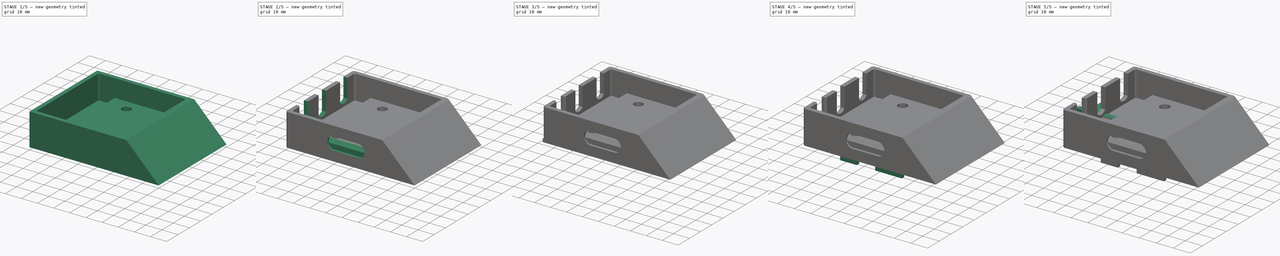
[diagram: build sequence overview — one tinted view per stage of 5, left to right]
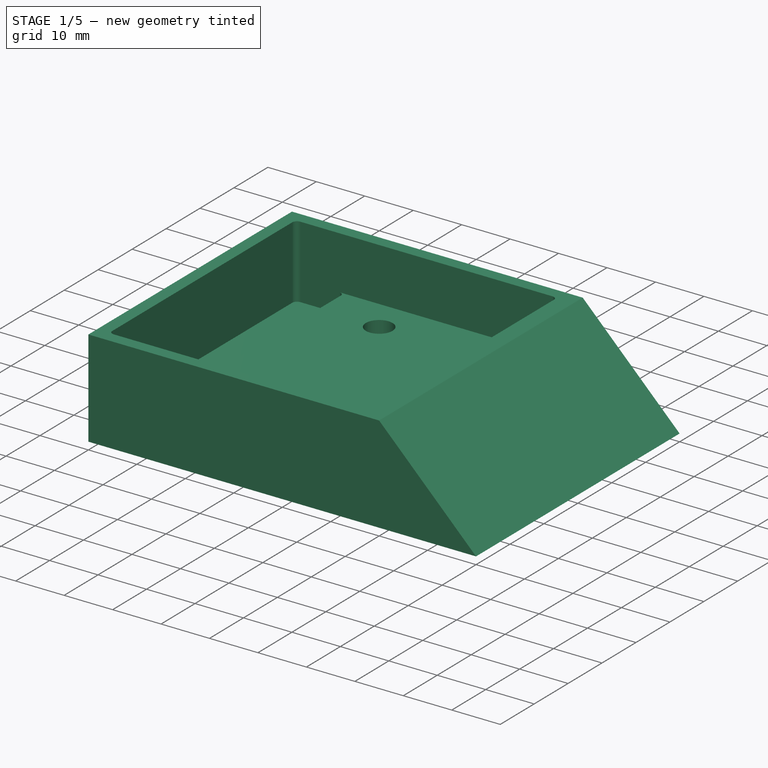
[diagram: stage 1 of 5 — iso view after this stage's code; geometry added in this stage tinted green]
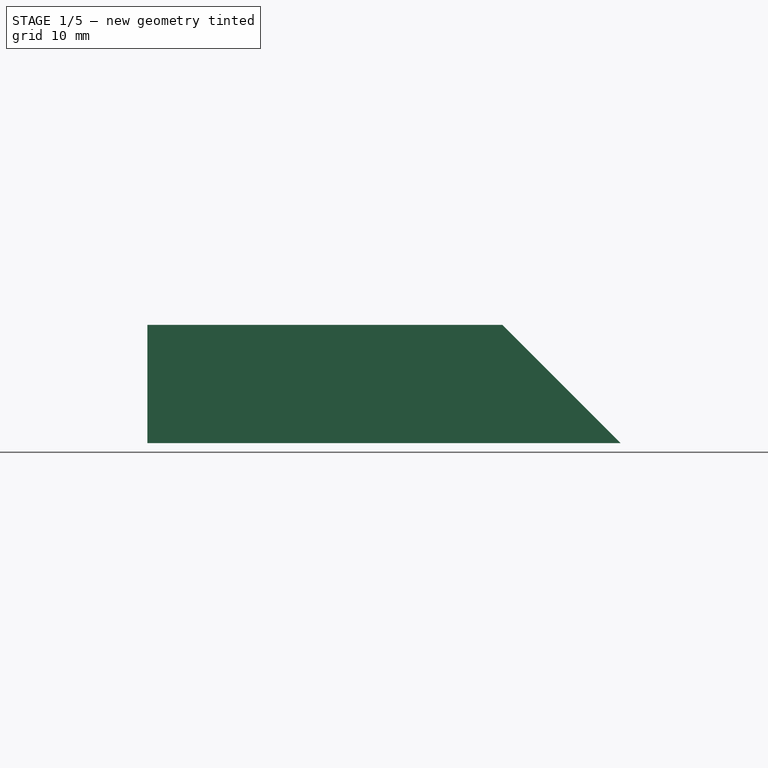
[diagram: stage 1 of 5 — front view after this stage's code; geometry added in this stage tinted green]
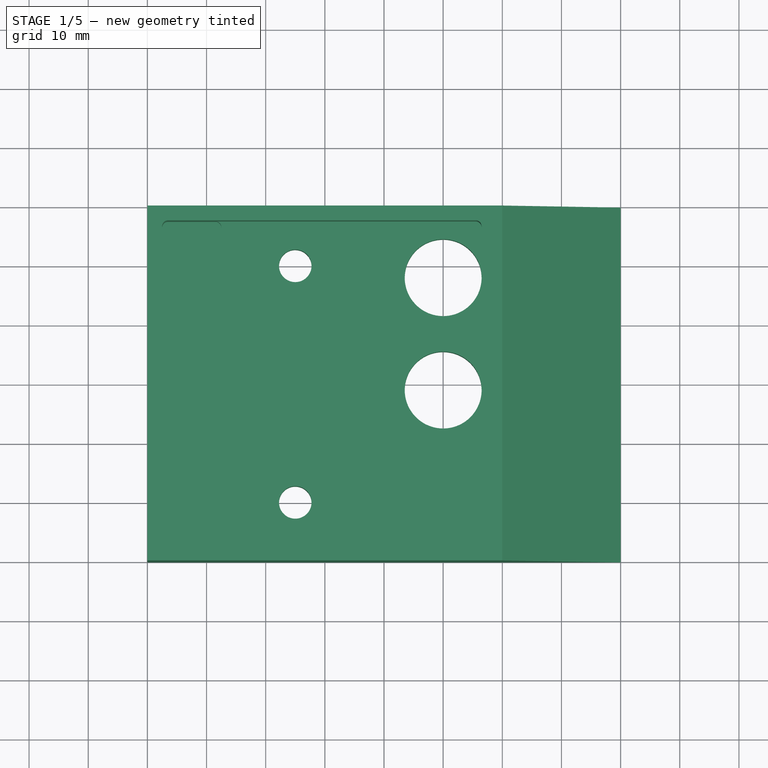
[diagram: stage 1 of 5 — top view after this stage's code; geometry added in this stage tinted green]
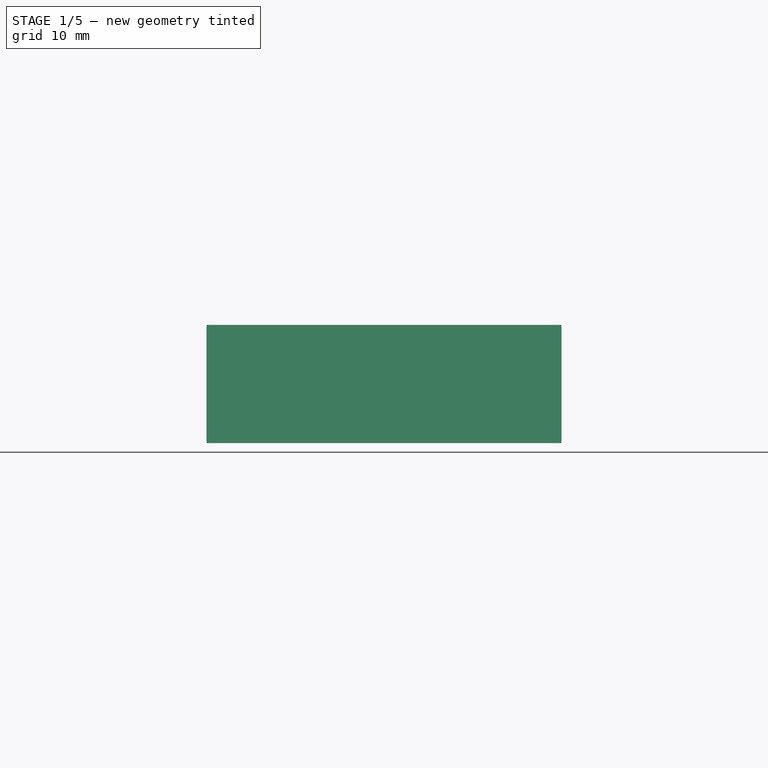
[diagram: stage 1 of 5 — right view after this stage's code; geometry added in this stage tinted green]
FCSTD DOCUMENT  (FreeCAD 0.21R33694 (Git))
Label: lisn_enclosure
License: All rights reserved
LicenseURL: http://en.wikipedia.org/wiki/All_rights_reserved
objects: App::Part×28, Part::Feature×25, Sketcher::SketchObject×17, PartDesign::Pocket×9, PartDesign::Pad×8, PartDesign::Chamfer×5, PartDesign::Body×3, PartDesign::SubtractiveCylinder×1, PartDesign::LinearPattern×1
note: 92 computed .brp shape members not serialized (recipe doc carries the construction recipe); baked Part::Feature solids carry a one-line shape summary decoded from their .brp

FEATURE [Sketcher::SketchObject] Sketch
  FullyConstrained = true
  MapMode = 5
  Placement = pos=(0,0,0) rot=(1,0,0;1.5708rad)
  Support = -> [XZ_Plane001]
  sketch-geometry (4):
    g0: LineSegment StartX=0 StartY=0 StartZ=0 EndX=0 EndY=20 EndZ=0
    g1: LineSegment StartX=0 StartY=20 StartZ=0 EndX=60 EndY=20 EndZ=0
    g2: LineSegment StartX=60 StartY=20 StartZ=0 EndX=80 EndY=0 EndZ=0
    g3: LineSegment StartX=80 StartY=0 StartZ=0 EndX=0 EndY=0 EndZ=0
  constraints (11):
    c: Coincident(g-1,g0)
    c: PointOnObject(g0,g-2)
    c: Coincident(g0,g1)
    c: Horizontal(g1)
    c: Coincident(g1,g2)
    c: PointOnObject(g2,g-1)
    c: Coincident(g2,g3)
    c: Coincident(g3,g0)
    c: DistanceX(g1,g1) = 60
    c: DistanceY(g0,g0) = 20
    c: DistanceX(g1,g2) = 20
FEATURE [PartDesign::Pad] Pad  label="BaseForm"
  Direction = (0,-1,2e-16)
  Length = 60
  Length2 = 10
  Midplane = true
  Placement = pos=(0,0,0) rot=(1,0,0;1.5708rad)
  Profile = -> Sketch
  ReferenceAxis = -> Sketch [N_Axis]
  Type = 0
FEATURE [Sketcher::SketchObject] Sketch001
  FullyConstrained = true
  MapMode = 5
  Support = -> [XY_Plane001]
  sketch-geometry (4):
    g0: Circle CenterX=25 CenterY=20 CenterZ=0 NormalX=0 NormalY=0 NormalZ=1 AngleXU=0 Radius=2.75
    g1: Circle CenterX=25 CenterY=-20 CenterZ=0 NormalX=0 NormalY=0 NormalZ=1 AngleXU=0 Radius=2.75
    g2: Circle CenterX=50 CenterY=18 CenterZ=0 NormalX=0 NormalY=0 NormalZ=1 AngleXU=0 Radius=6.5
    g3: Circle CenterX=50 CenterY=-1 CenterZ=0 NormalX=0 NormalY=0 NormalZ=1 AngleXU=0 Radius=6.5
  constraints (11):
    c: Symmetric(g1,g0,g-1)
    c: Vertical(g2,g3)
    c: DistanceY(g3,g2) = 19
    c: DistanceY(g1,g0) = 40
    c: DistanceX(g-1,g0) = 25
    c: DistanceX(g0,g2) = 25
    c: Equal(g0,g1)
    c: Diameter(g1) = 5.5
    c: Equal(g2,g3)
    c: Diameter(g2) = 13
    c: DistanceY(g2,g0) = 2
FEATURE [PartDesign::Pocket] Pocket  label="MountingHoles"
  BaseFeature = -> Pad
  Direction = (0,0,-1)
  Length = 5
  Length2 = 5
  Placement = pos=(0,0,0) rot=(1,0,0;1.5708rad)
  Profile = -> Sketch001
  ReferenceAxis = -> Sketch001 [N_Axis]
  Reversed = true
  Type = 1
FEATURE [Sketcher::SketchObject] Sketch003
  AttachmentOffset = pos=(0,0,20) rot=(0,0,1;0rad)
  FullyConstrained = true
  MapMode = 5
  Placement = pos=(0,0,20) rot=(0,0,1;0rad)
  Support = -> [XY_Plane001]
  sketch-geometry (10):
    g0: ArcOfCircle CenterX=55.5 CenterY=26.5 CenterZ=0 NormalX=0 NormalY=0 NormalZ=1 AngleXU=0 Radius=1 StartAngle=1.3e-15 EndAngle=1.5708
    g1: LineSegment StartX=56.5 StartY=26.5 StartZ=0 EndX=56.5 EndY=-26.5 EndZ=0
    g2: ArcOfCircle CenterX=55.5 CenterY=-26.5 CenterZ=0 NormalX=0 NormalY=0 NormalZ=1 AngleXU=0 Radius=1 StartAngle=4.71239 EndAngle=6.28319
    g3: LineSegment StartX=55.5 StartY=-27.5 StartZ=0 EndX=3.5 EndY=-27.5 EndZ=0
    g4: ArcOfCircle CenterX=3.5 CenterY=-26.5 CenterZ=0 NormalX=0 NormalY=0 NormalZ=1 AngleXU=0 Radius=1 StartAngle=3.14159 EndAngle=4.71239
    g5: LineSegment StartX=2.5 StartY=-26.5 StartZ=0 EndX=2.5 EndY=26.5 EndZ=0
    g6: ArcOfCircle CenterX=3.5 CenterY=26.5 CenterZ=0 NormalX=0 NormalY=0 NormalZ=1 AngleXU=0 Radius=1 StartAngle=1.5708 EndAngle=3.14159
    g7: LineSegment StartX=3.5 StartY=27.5 StartZ=0 EndX=55.5 EndY=27.5 EndZ=0
    g8: GeomPoint X=56.5 Y=27.5 Z=0
    g9: GeomPoint X=2.5 Y=-27.5 Z=0
  constraints (23):
    c: Tangent(g0,g1) = 1.5708
    c: Tangent(g1,g2) = 1.5708
    c: Tangent(g2,g3) = 1.5708
    c: Tangent(g3,g4) = 1.5708
    c: Tangent(g4,g5) = 1.5708
    c: Tangent(g5,g6) = 1.5708
    c: Tangent(g6,g7) = 1.5708
    c: Tangent(g7,g0) = 1.5708
    c: Horizontal(g3)
    c: Horizontal(g7)
    c: Vertical(g1)
    c: Vertical(g5)
    c: Equal(g0,g2)
    c: Equal(g2,g4)
    c: PointOnObject(g8,g1)
    c: PointOnObject(g8,g7)
    c: PointOnObject(g9,g3)
    c: PointOnObject(g9,g5)
    c: DistanceX(g5,g0) = 54
    c: DistanceY(g2,g0) = 55
    c: Symmetric(g6,g3,g-1)
    c: Radius(g6) = 1
    c: DistanceX(g-1,g5) = 2.5
FEATURE [PartDesign::Pocket] Pocket002  label="PCBClearance"
  BaseFeature = -> Pocket
  Direction = (0,0,-1)
  Length = 11
  Length2 = 5
  Placement = pos=(0,0,0) rot=(1,0,0;1.5708rad)
  Profile = -> Sketch003
  ReferenceAxis = -> Sketch003 [N_Axis]
  Type = 0
FEATURE [Sketcher::SketchObject] Sketch004
  AttachmentOffset = pos=(0,0,20) rot=(0,0,1;0rad)
  FullyConstrained = true
  MapMode = 5
  Placement = pos=(0,0,20) rot=(0,0,1;0rad)
  Support = -> [XY_Plane001]
  sketch-geometry (10):
    g0: ArcOfCircle CenterX=3.5 CenterY=26.5 CenterZ=0 NormalX=0 NormalY=0 NormalZ=1 AngleXU=0 Radius=1 StartAngle=1.5708 EndAngle=3.14159
    g1: LineSegment StartX=3.5 StartY=27.5 StartZ=0 EndX=11.5 EndY=27.5 EndZ=0
    g2: ArcOfCircle CenterX=11.5 CenterY=26.5 CenterZ=0 NormalX=0 NormalY=0 NormalZ=1 AngleXU=0 Radius=1 StartAngle=2e-16 EndAngle=1.5708
    g3: LineSegment StartX=12.5 StartY=26.5 StartZ=0 EndX=12.5 EndY=-26.5 EndZ=0
    g4: ArcOfCircle CenterX=11.5 CenterY=-26.5 CenterZ=0 NormalX=0 NormalY=0 NormalZ=1 AngleXU=0 Radius=1 StartAngle=4.71239 EndAngle=6.28319
    g5: LineSegment StartX=11.5 StartY=-27.5 StartZ=0 EndX=3.5 EndY=-27.5 EndZ=0
    g6: ArcOfCircle CenterX=3.5 CenterY=-26.5 CenterZ=0 NormalX=0 NormalY=0 NormalZ=1 AngleXU=0 Radius=1 StartAngle=3.14159 EndAngle=4.71239
    g7: LineSegment StartX=2.5 StartY=-26.5 StartZ=0 EndX=2.5 EndY=26.5 EndZ=0
    g8: GeomPoint X=2.5 Y=27.5 Z=0
    g9: GeomPoint X=12.5 Y=-27.5 Z=0
  constraints (23):
    c: Tangent(g0,g1) = 1.5708
    c: Tangent(g1,g2) = 1.5708
    c: Tangent(g2,g3) = 1.5708
    c: Tangent(g3,g4) = 1.5708
    c: Tangent(g4,g5) = 1.5708
    c: Tangent(g5,g6) = 1.5708
    c: Tangent(g6,g7) = 1.5708
    c: Tangent(g7,g0) = 1.5708
    c: Horizontal(g1)
    c: Horizontal(g5)
    c: Vertical(g3)
    c: Vertical(g7)
    c: Equal(g0,g2)
    c: Equal(g2,g4)
    c: PointOnObject(g8,g1)
    c: PointOnObject(g8,g7)
    c: PointOnObject(g9,g3)
    c: PointOnObject(g9,g5)
    c: Symmetric(g5,g0,g-1)
    c: DistanceX(g-1,g0) = 2.5
    c: DistanceY(g4,g1) = 55
    c: DistanceX(g-1,g3) = 12.5
    c: Radius(g4) = 1
FEATURE [PartDesign::Pocket] Pocket003  label="ConnectorClearance"
  BaseFeature = -> Pocket002
  Direction = (0,0,-1)
  Length = 15
  Length2 = 5
  Placement = pos=(0,0,0) rot=(1,0,0;1.5708rad)
  Profile = -> Sketch004
  ReferenceAxis = -> Sketch004 [N_Axis]
  Type = 0
FEATURE [Sketcher::SketchObject] Sketch005
  FullyConstrained = true
  MapMode = 5
  Support = -> [XY_Plane001]
  sketch-geometry (10):
    g0: ArcOfCircle CenterX=2.5 CenterY=25.5 CenterZ=0 NormalX=0 NormalY=0 NormalZ=1 AngleXU=0 Radius=1 StartAngle=1.5708 EndAngle=3.14159
    g1: LineSegment StartX=2.5 StartY=26.5 StartZ=0 EndX=75.5 EndY=26.5 EndZ=0
    g2: ArcOfCircle CenterX=75.5 CenterY=25.5 CenterZ=0 NormalX=0 NormalY=0 NormalZ=1 AngleXU=0 Radius=1 StartAngle=5.1e-15 EndAngle=1.5708
    g3: LineSegment StartX=76.5 StartY=25.5 StartZ=0 EndX=76.5 EndY=-25.5 EndZ=0
    g4: ArcOfCircle CenterX=75.5 CenterY=-25.5 CenterZ=0 NormalX=0 NormalY=0 NormalZ=1 AngleXU=0 Radius=1 StartAngle=4.71239 EndAngle=6.28319
    g5: LineSegment StartX=75.5 StartY=-26.5 StartZ=0 EndX=2.5 EndY=-26.5 EndZ=0
    g6: ArcOfCircle CenterX=2.5 CenterY=-25.5 CenterZ=0 NormalX=0 NormalY=0 NormalZ=1 AngleXU=0 Radius=1 StartAngle=3.14159 EndAngle=4.71239
    g7: LineSegment StartX=1.5 StartY=-25.5 StartZ=0 EndX=1.5 EndY=25.5 EndZ=0
    g8: GeomPoint X=1.5 Y=26.5 Z=0
    g9: GeomPoint X=76.5 Y=-26.5 Z=0
  constraints (23):
    c: Tangent(g0,g1) = 1.5708
    c: Tangent(g1,g2) = 1.5708
    c: Tangent(g2,g3) = 1.5708
    c: Tangent(g3,g4) = 1.5708
    c: Tangent(g4,g5) = 1.5708
    c: Tangent(g5,g6) = 1.5708
    c: Tangent(g6,g7) = 1.5708
    c: Tangent(g7,g0) = 1.5708
    c: Horizontal(g1)
    c: Horizontal(g5)
    c: Vertical(g3)
    c: Vertical(g7)
    c: Equal(g0,g2)
    c: Equal(g2,g4)
    c: PointOnObject(g8,g1)
    c: PointOnObject(g8,g7)
    c: PointOnObject(g9,g3)
    c: PointOnObject(g9,g5)
    c: Symmetric(g5,g0,g-1)
    c: DistanceY(g5,g0) = 53
    c: DistanceX(g6,g3) = 75
    c: Radius(g6) = 1
    c: DistanceX(g-1,g0) = 1.5
FEATURE [PartDesign::Pocket] Pocket004  label="BottomSurfaceRecess"
  BaseFeature = -> Pocket003
  Direction = (0,0,-1)
  Length = 2
  Length2 = 5
  Placement = pos=(0,0,0) rot=(1,0,0;1.5708rad)
  Profile = -> Sketch005
  ReferenceAxis = -> Sketch005 [N_Axis]
  Reversed = true
  Type = 0
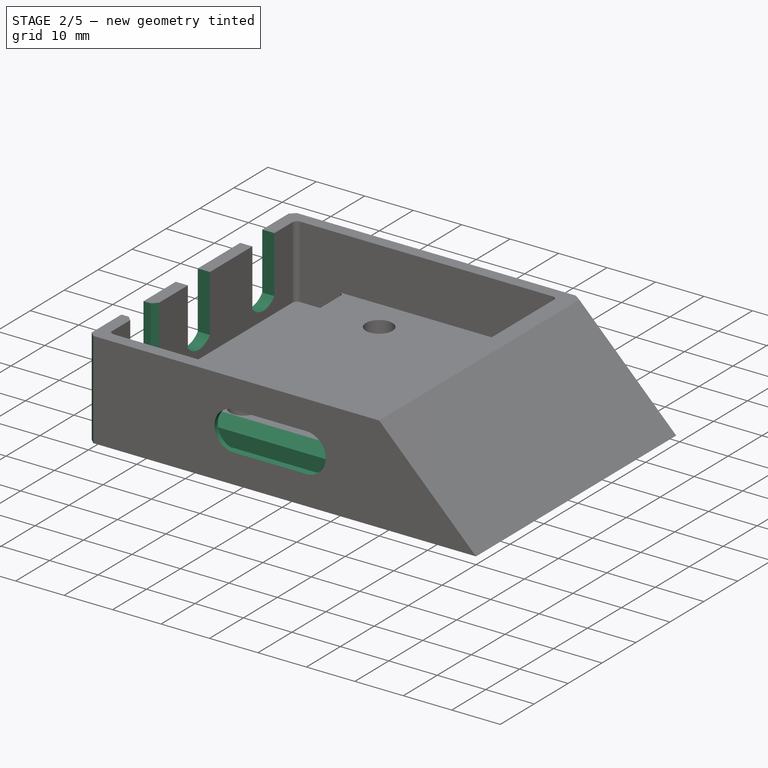
[diagram: stage 2 of 5 — iso view after this stage's code; geometry added in this stage tinted green]
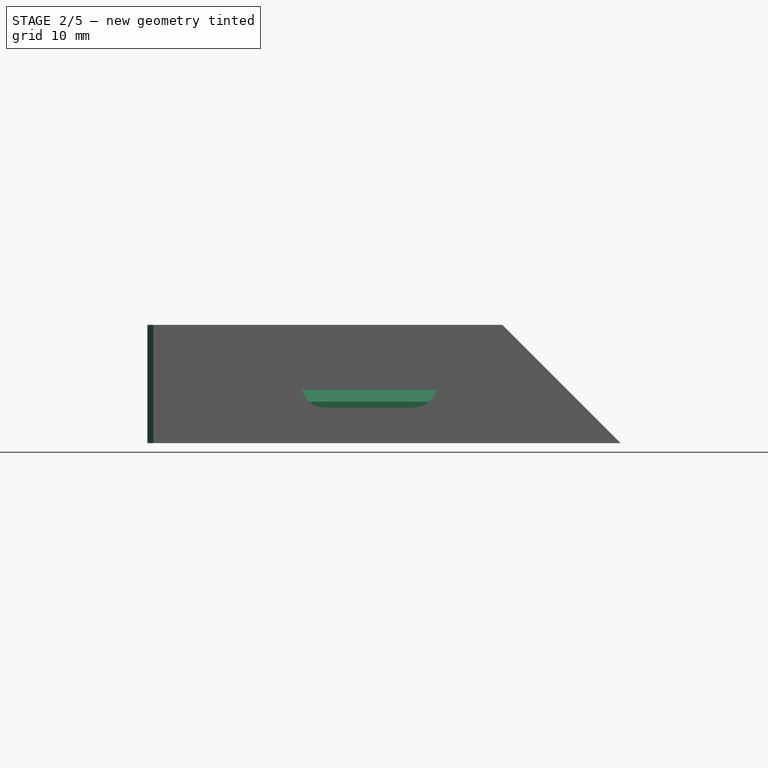
[diagram: stage 2 of 5 — front view after this stage's code; geometry added in this stage tinted green]
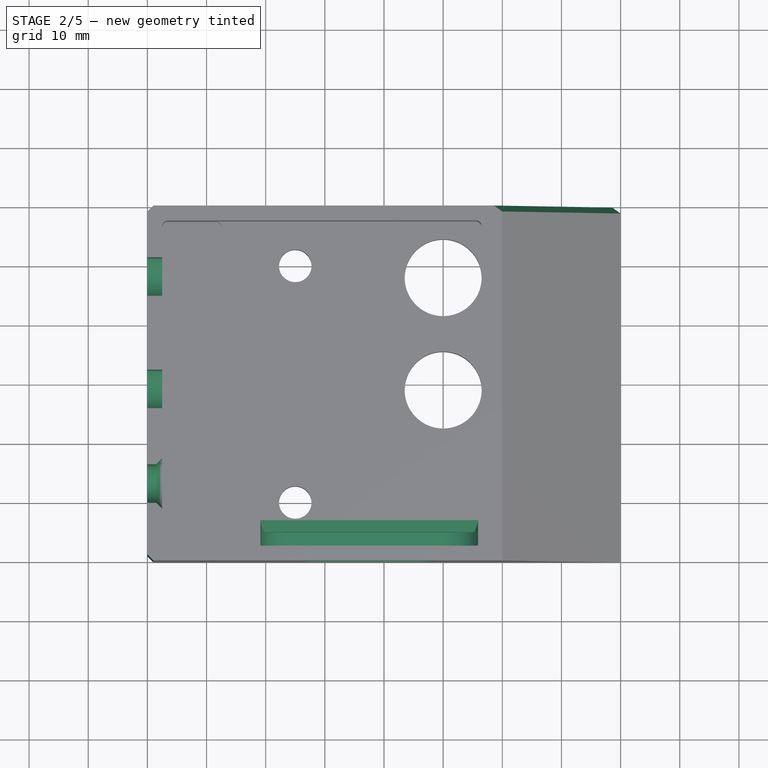
[diagram: stage 2 of 5 — top view after this stage's code; geometry added in this stage tinted green]
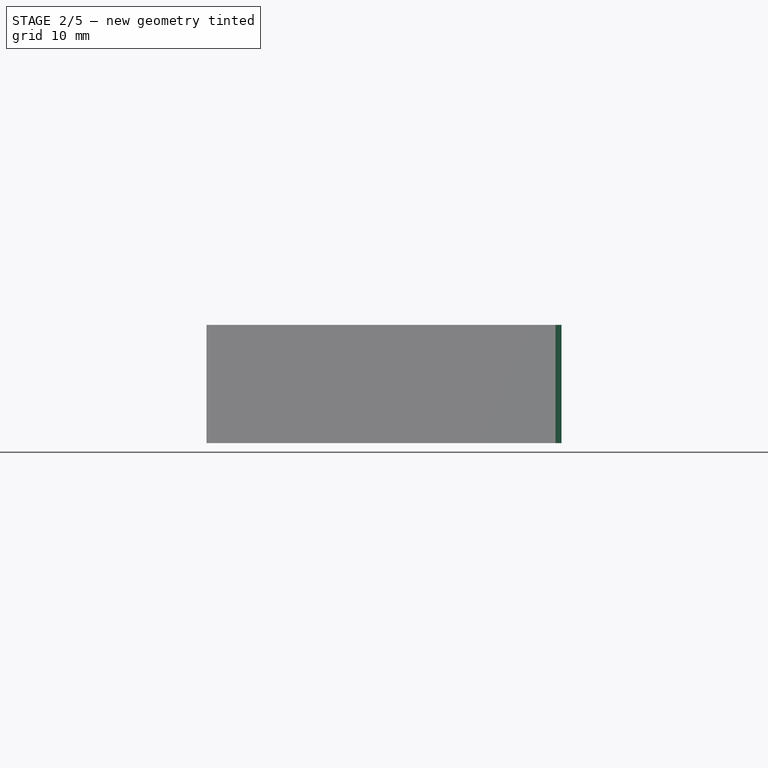
[diagram: stage 2 of 5 — right view after this stage's code; geometry added in this stage tinted green]
FEATURE [Sketcher::SketchObject] Sketch006
  FullyConstrained = true
  MapMode = 5
  Placement = pos=(0,0,0) rot=(0.57735,0.57735,0.57735;2.0944rad)
  Support = -> [YZ_Plane001]
  sketch-geometry (12):
    g0: ArcOfCircle CenterX=-1 CenterY=11 CenterZ=0 NormalX=0 NormalY=0 NormalZ=1 AngleXU=0 Radius=4.25 StartAngle=3.8418 EndAngle=5.58297
    g1: LineSegment StartX=-4.25 StartY=8.26139 StartZ=0 EndX=-4.25 EndY=21 EndZ=0
    g2: LineSegment StartX=2.25 StartY=21 StartZ=0 EndX=2.25 EndY=8.26139 EndZ=0
    g3: LineSegment StartX=-4.25 StartY=21 StartZ=0 EndX=2.25 EndY=21 EndZ=0
    g4: ArcOfCircle CenterX=18 CenterY=11 CenterZ=0 NormalX=0 NormalY=0 NormalZ=1 AngleXU=0 Radius=4.25 StartAngle=3.8418 EndAngle=5.58297
    g5: LineSegment StartX=14.75 StartY=8.26139 StartZ=0 EndX=14.75 EndY=21 EndZ=0
    g6: LineSegment StartX=21.25 StartY=21 StartZ=0 EndX=21.25 EndY=8.26139 EndZ=0
    g7: LineSegment StartX=14.75 StartY=21 StartZ=0 EndX=21.25 EndY=21 EndZ=0
    g8: ArcOfCircle CenterX=-17 CenterY=11 CenterZ=0 NormalX=0 NormalY=0 NormalZ=1 AngleXU=0 Radius=3.25 StartAngle=3.14159 EndAngle=6.28319
    g9: LineSegment StartX=-20.25 StartY=11 StartZ=0 EndX=-20.25 EndY=21 EndZ=0
    g10: LineSegment StartX=-20.25 StartY=21 StartZ=0 EndX=-13.75 EndY=21 EndZ=0
    g11: LineSegment StartX=-13.75 StartY=21 StartZ=0 EndX=-13.75 EndY=11 EndZ=0
  constraints (38):
    c: Coincident(g1,g0)
    c: Vertical(g1)
    c: Coincident(g2,g0)
    c: Vertical(g2)
    c: DistanceX(g0,g0) = 6.5
    c: Coincident(g3,g1)
    c: Coincident(g3,g2)
    c: Horizontal(g3)
    c: Coincident(g5,g4)
    c: Vertical(g5)
    c: Coincident(g6,g4)
    c: Vertical(g6)
    c: DistanceX(g4,g4) = 6.5
    c: Coincident(g7,g5)
    c: Coincident(g7,g6)
    c: Horizontal(g7)
    c: Tangent(g8,g9) = 1.5708
    c: Coincident(g9,g10)
    c: Horizontal(g10)
    c: Coincident(g10,g11)
    c: Coincident(g11,g8)
    c: Vertical(g11)
    c: Vertical(g9)
    c: DistanceX(g10,g10) = 6.5
    c: Equal(g0,g4)
    c: Diameter(g0) = 8.5
    c: Horizontal(g5,g2)
    c: Horizontal(g0,g0)
    c: Horizontal(g4,g4)
    c: Horizontal(g4,g0)
    c: DistanceX(g0,g4) = 19
    c: DistanceY(g-1,g0) = 11
    c: DistanceY(g-1,g1) = 21
    c: Horizontal(g9,g6)
    c: Horizontal(g8,g4)
    c: Horizontal(g8,g8)
    c: DistanceX(g8,g-1) = 17
    c: DistanceX(g-1,g4) = 18
FEATURE [PartDesign::Pocket] Pocket005  label="ConnectorSlots"
  BaseFeature = -> Pocket004
  Direction = (-1,2e-16,-3e-16)
  Length = 5
  Length2 = 5
  Placement = pos=(0,0,0) rot=(1,0,0;1.5708rad)
  Profile = -> Sketch006
  ReferenceAxis = -> Sketch006 [N_Axis]
  Reversed = true
  Type = 0
FEATURE [Sketcher::SketchObject] Sketch007
  AttachmentOffset = pos=(0,0,30) rot=(0,0,1;0rad)
  FullyConstrained = true
  MapMode = 5
  Placement = pos=(0,-30,-6.7e-15) rot=(1,0,0;1.5708rad)
  Support = -> [XZ_Plane001]
  sketch-geometry (4):
    g0: ArcOfCircle CenterX=30 CenterY=10 CenterZ=0 NormalX=0 NormalY=0 NormalZ=1 AngleXU=0 Radius=4 StartAngle=1.5708 EndAngle=4.71239
    g1: ArcOfCircle CenterX=45 CenterY=10 CenterZ=0 NormalX=0 NormalY=0 NormalZ=1 AngleXU=0 Radius=4 StartAngle=4.71239 EndAngle=7.85398
    g2: LineSegment StartX=30 StartY=6 StartZ=0 EndX=45 EndY=6 EndZ=0
    g3: LineSegment StartX=45 StartY=14 StartZ=0 EndX=30 EndY=14 EndZ=0
  constraints (10):
    c: Tangent(g0,g2) = -1.5708
    c: Tangent(g2,g1) = -1.5708
    c: Tangent(g1,g3) = -1.5708
    c: Tangent(g3,g0) = -1.5708
    c: Equal(g0,g1)
    c: Horizontal(g2)
    c: DistanceX(g0,g1) = 15
    c: DistanceY(g1,g1) = 8
    c: DistanceY(g-1,g0) = 10
    c: DistanceX(g-1,g0) = 30
FEATURE [PartDesign::Pocket] Pocket006  label="SwitchSliderHole"
  BaseFeature = -> Pocket005
  Direction = (0,1,2e-16)
  Length = 5
  Length2 = 5
  Placement = pos=(0,0,0) rot=(1,0,0;1.5708rad)
  Profile = -> Sketch007
  ReferenceAxis = -> Sketch007 [N_Axis]
  Type = 0
FEATURE [Sketcher::SketchObject] Sketch008
  FullyConstrained = true
  MapMode = 5
  Placement = pos=(0,0,0) rot=(1,0,0;1.5708rad)
  Support = -> [XZ_Plane028]
  sketch-geometry (4):
    g0: ArcOfCircle CenterX=-6.25 CenterY=0 CenterZ=0 NormalX=0 NormalY=0 NormalZ=1 AngleXU=0 Radius=3.75 StartAngle=1.5708 EndAngle=4.71239
    g1: ArcOfCircle CenterX=6.25 CenterY=0 CenterZ=0 NormalX=0 NormalY=0 NormalZ=1 AngleXU=0 Radius=3.75 StartAngle=4.71239 EndAngle=7.85398
    g2: LineSegment StartX=-6.25 StartY=-3.75 StartZ=0 EndX=6.25 EndY=-3.75 EndZ=0
    g3: LineSegment StartX=6.25 StartY=3.75 StartZ=0 EndX=-6.25 EndY=3.75 EndZ=0
  constraints (9):
    c: Tangent(g0,g2) = -1.5708
    c: Tangent(g2,g1) = -1.5708
    c: Tangent(g1,g3) = -1.5708
    c: Tangent(g3,g0) = -1.5708
    c: Equal(g0,g1)
    c: PointOnObject(g0,g-1)
    c: Symmetric(g1,g0,g-2)
    c: DistanceY(g1,g1) = 7.5
    c: DistanceX(g0,g1) = 12.5
FEATURE [Sketcher::SketchObject] Sketch009
  AttachmentOffset = pos=(0,0,25) rot=(0,0,1;0rad)
  FullyConstrained = true
  MapMode = 5
  Placement = pos=(0,-25,-5.6e-15) rot=(1,0,0;1.5708rad)
  Support = -> [XZ_Plane001]
  sketch-geometry (4):
    g0: ArcOfCircle CenterX=25 CenterY=10 CenterZ=0 NormalX=0 NormalY=0 NormalZ=1 AngleXU=0 Radius=6 StartAngle=1.5708 EndAngle=4.71239
    g1: ArcOfCircle CenterX=50 CenterY=10 CenterZ=0 NormalX=0 NormalY=0 NormalZ=1 AngleXU=0 Radius=6 StartAngle=4.71239 EndAngle=7.85398
    g2: LineSegment StartX=25 StartY=4 StartZ=0 EndX=50 EndY=4 EndZ=0
    g3: LineSegment StartX=50 StartY=16 StartZ=0 EndX=25 EndY=16 EndZ=0
  constraints (10):
    c: Tangent(g0,g2) = -1.5708
    c: Tangent(g2,g1) = -1.5708
    c: Tangent(g1,g3) = -1.5708
    c: Tangent(g3,g0) = -1.5708
    c: Equal(g0,g1)
    c: Horizontal(g2)
    c: DistanceX(g0,g1) = 25
    c: DistanceY(g1,g1) = 12
    c: DistanceY(g-1,g0) = 4
    c: DistanceX(g-1,g0) = 25
FEATURE [PartDesign::Pocket] Pocket007  label="SwitchSliderBackClearance"
  BaseFeature = -> Pocket006
  Direction = (0,1,2e-16)
  Length = 4
  Length2 = 5
  Placement = pos=(0,0,0) rot=(1,0,0;1.5708rad)
  Profile = -> Sketch009
  ReferenceAxis = -> Sketch009 [N_Axis]
  Reversed = true
  Type = 0
FEATURE [PartDesign::Body] Body001  label="SwitchSlider001"
  Group = -> [Sketch008,Pad001,Sketch010,Pad002,Sketch011,Pad003,Cylinder,LinearPattern,Sketch012,Pocket008]
  Origin = -> Origin028
  Tip = -> Pocket008
FEATURE [App::Part] Part001  label="SwitchSlider"
  Group = -> [Body001]
  Origin = -> Origin027
  Placement = pos=(36.25,-29,10) rot=(0,0,1;0rad)
FEATURE [PartDesign::Chamfer] Chamfer
  Angle = 45
  Base = -> Pocket007 [Edge15,Edge1,Edge63,Edge18]
  BaseFeature = -> Pocket007
  ChamferType = 0
  FlipDirection = false
  Placement = pos=(0,0,0) rot=(1,0,0;1.5708rad)
  Refine = true
  Size = 1
  Size2 = 1
  SupportTransform = false
  UseAllEdges = false
FEATURE [PartDesign::Body] Body002  label="EnclosureLid001"
  Group = -> [Pad007,Pad004,Pad006,Pocket009,Sketch013,Sketch015,Sketch016,Sketch017,Sketch018,Pad008,Chamfer001,Chamfer002,Chamfer003]
  Origin = -> Origin080
  Tip = -> Chamfer003
FEATURE [App::Part] Part002  label="EnclosureLid"
  Group = -> [Body002]
  Origin = -> Origin079
  Placement = pos=(0,0,20) rot=(0,0,1;0rad)
FEATURE [PartDesign::Chamfer] Chamfer004
  Angle = 45
  Base = -> Chamfer [Edge127]
  BaseFeature = -> Chamfer
  ChamferType = 0
  FlipDirection = false
  Placement = pos=(0,0,0) rot=(1,0,0;1.5708rad)
  Size = 2
  Size2 = 1
  SupportTransform = false
  UseAllEdges = false
FEATURE [PartDesign::Body] Body  label="EnclosureBottom001"
  Group = -> [Sketch,Pad,Sketch001,Pocket,Sketch003,Pocket002,Sketch004,Pocket003,Sketch005,Pocket004,Sketch006,Pocket005,Sketch007,Pocket006,Sketch009,Pocket007,Chamfer,Chamfer004]
  Origin = -> Origin001
  Tip = -> Chamfer004
FEATURE [App::Part] Part  label="EnclosureBottom"
  Group = -> [Body]
  Origin = -> Origin
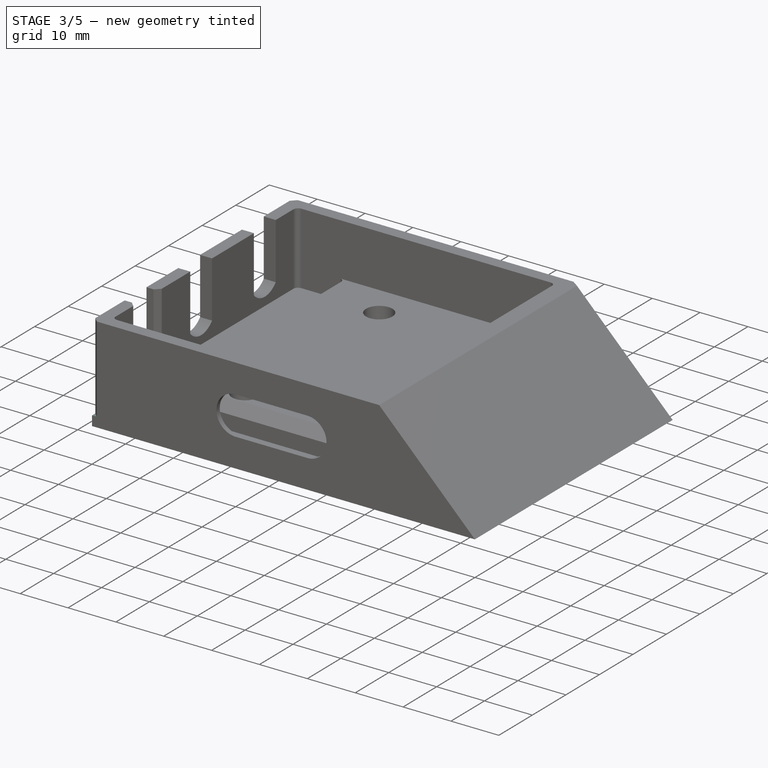
[diagram: stage 3 of 5 — iso view after this stage's code; geometry added in this stage tinted green]
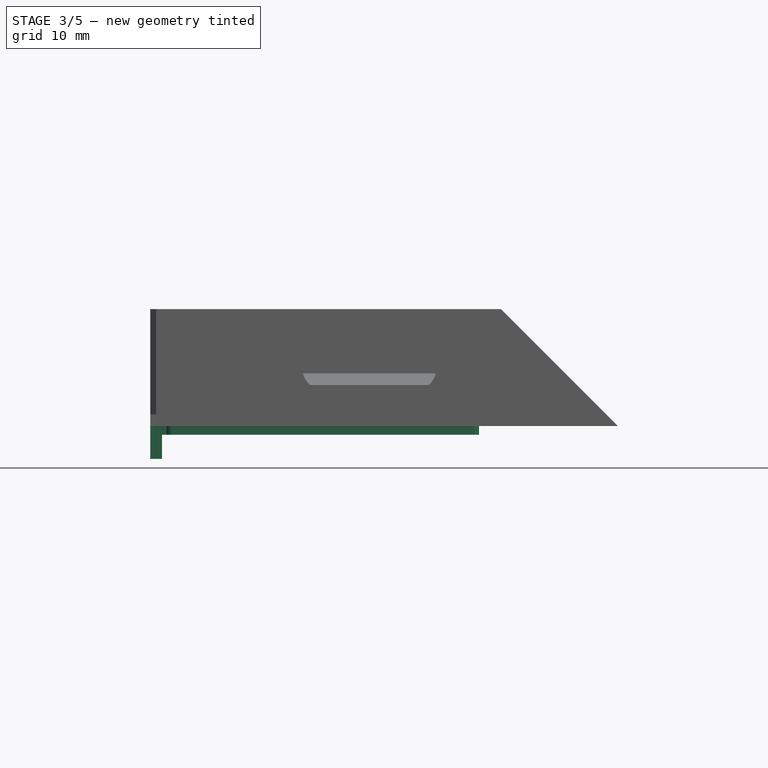
[diagram: stage 3 of 5 — front view after this stage's code; geometry added in this stage tinted green]
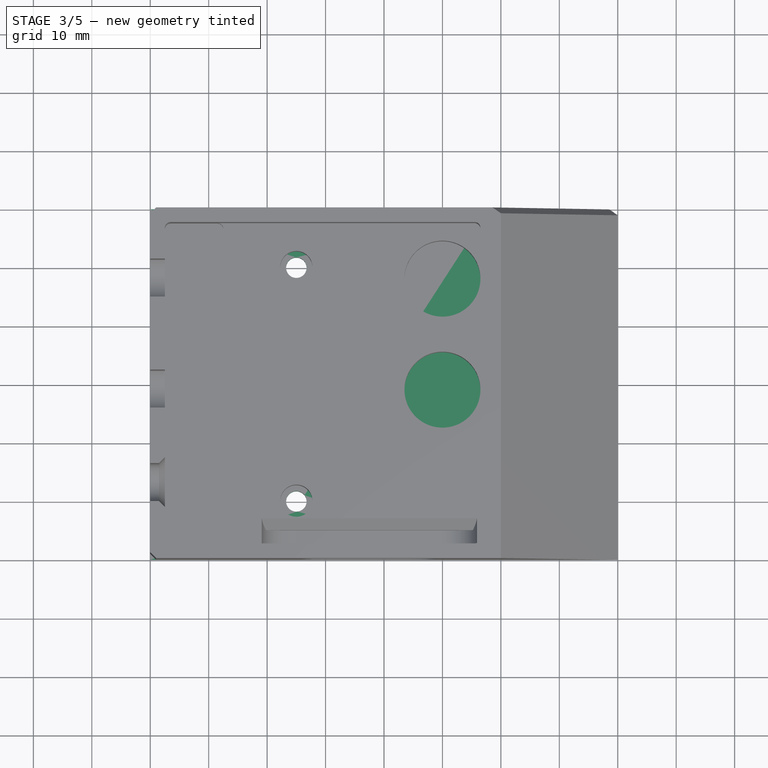
[diagram: stage 3 of 5 — top view after this stage's code; geometry added in this stage tinted green]
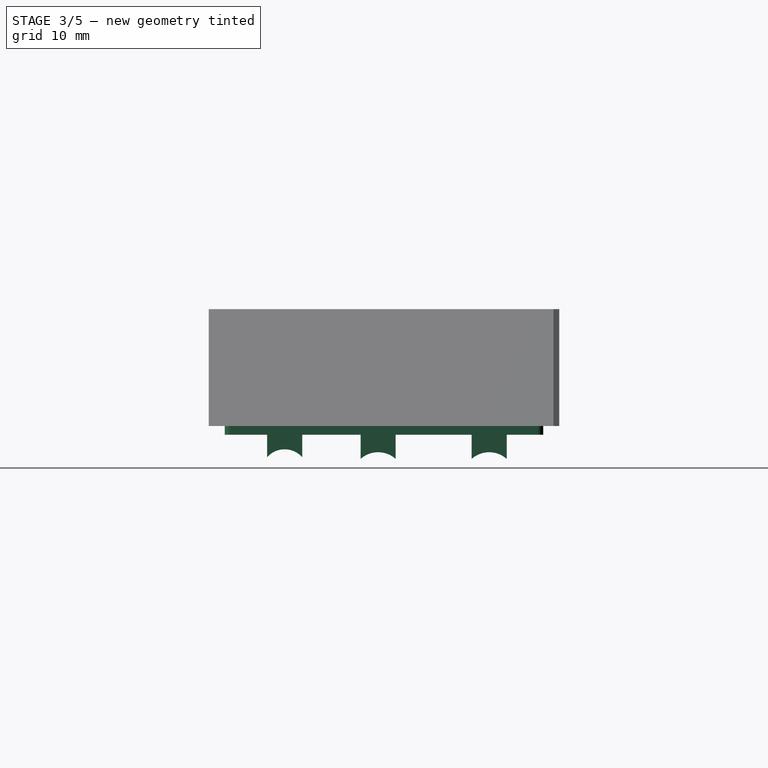
[diagram: stage 3 of 5 — right view after this stage's code; geometry added in this stage tinted green]
FEATURE [Part::Feature] Part__Feature  label="SOLID"
  shape: bbox 13.21 x 5.75 x 7.62 mm, 75 faces (baked)
FEATURE [App::Part] Coilcraft_SWBXXXX_SML  label="Coilcraft-SWBXXXX-SML"
  Group = -> [Part__Feature]
  Origin = -> Origin054
  Placement = pos=(-30,17,1.85) rot=(1,0,0;1.5708rad)
FEATURE [Part::Feature] Part__Feature050  label="SOLID046"
  shape: bbox 3.2 x 2.5 x 2.5 mm, 28 faces (baked)
FEATURE [App::Part] C_1210_3225Metric
  Group = -> [Part__Feature050]
  Origin = -> Origin055
  Placement = pos=(-30,27.2,1.65) rot=(0,0,1;3.14159rad)
FEATURE [Part::Feature] Part__Feature051  label="SOLID047"
  shape: bbox 3.2 x 2.5 x 2.5 mm, 28 faces (baked)
FEATURE [App::Part] C_1210_3225Metric010
  Group = -> [Part__Feature051]
  Origin = -> Origin056
  Placement = pos=(-10.8,21,1.65) rot=(0,0,1;3.14159rad)
FEATURE [Part::Feature] Part__Feature052  label="SOLID048"
  shape: bbox 3.2 x 2.5 x 2.5 mm, 28 faces (baked)
FEATURE [App::Part] C_1210_3225Metric011
  Group = -> [Part__Feature052]
  Origin = -> Origin057
  Placement = pos=(-39.3,32.2,1.65) rot=(0,0,1;1.5708rad)
FEATURE [Part::Feature] Part__Feature053  label="SOLID049"
  shape: bbox 3.8 x 1.6 x 1.25 mm, 67 faces (baked)
FEATURE [App::Part] D_SOD_123  label="D_SOD-123"
  Group = -> [Part__Feature053]
  Origin = -> Origin058
  Placement = pos=(-14.5,13.35,1.65) rot=(0,0,1;1.5708rad)
FEATURE [Part::Feature] Part__Feature054  label="SOLID050"
  shape: bbox 3.8 x 1.6 x 1.25 mm, 67 faces (baked)
FEATURE [App::Part] D_SOD_123012  label="D_SOD-135"
  Group = -> [Part__Feature054]
  Origin = -> Origin059
  Placement = pos=(-40.1,9.5,1.65) rot=(0,0,-1;1.5708rad)
FEATURE [Part::Feature] Part__Feature055  label="COMPOUND"
  shape: bbox 3.6 x 5.6 x 9 mm, 219 faces, 9 solids (baked)
FEATURE [App::Part] JS202011JCQN__3DModel_STEP_1  label="JS202011JCQN--3DModel-STEP-1"
  Group = -> [Part__Feature055]
  Origin = -> Origin060
  Placement = pos=(-20,6.4,1.65) rot=(0.57735,0.57735,0.57735;2.0944rad)
FEATURE [Part::Feature] Part__Feature056  label="SOLID051"
  shape: bbox 1.6 x 0.8 x 0.45 mm, 26 faces (baked)
FEATURE [App::Part] R_0603_1608Metric
  Group = -> [Part__Feature056]
  Origin = -> Origin061
  Placement = pos=(-14.5,17.5,1.65) rot=(0,0,-1;1.5708rad)
FEATURE [Part::Feature] Part__Feature057  label="SOLID052"
  shape: bbox 1.6 x 0.8 x 0.45 mm, 26 faces (baked)
FEATURE [App::Part] R_0603_1608Metric016
  Group = -> [Part__Feature057]
  Origin = -> Origin062
  Placement = pos=(-10.5,17.5,1.65) rot=(0,0,-1;1.5708rad)
FEATURE [Part::Feature] Part__Feature058  label="SOLID053"
  shape: bbox 1.6 x 0.8 x 0.45 mm, 26 faces (baked)
FEATURE [App::Part] R_0603_1608Metric017
  Group = -> [Part__Feature058]
  Origin = -> Origin063
  Placement = pos=(-36.9,10.5,1.65) rot=(0,0,1;3.14159rad)
FEATURE [Part::Feature] Part__Feature059  label="SOLID054"
  shape: bbox 3.8 x 1.6 x 1.25 mm, 67 faces (baked)
FEATURE [App::Part] D_SOD_123013  label="D_SOD-136"
  Group = -> [Part__Feature059]
  Origin = -> Origin064
  Placement = pos=(-12,13.35,1.65) rot=(0,0,-1;1.5708rad)
FEATURE [Part::Feature] Part__Feature060  label="SOLID055"
  shape: bbox 23.83 x 12.84 x 12.84 mm, 152 faces (baked)
FEATURE [App::Part] _08_0902_001  label="108-0902-001"
  Group = -> [Part__Feature060]
  Origin = -> Origin065
  Placement = pos=(-59.075,23.5,1.95) rot=(0,0,1;0rad)
FEATURE [Part::Feature] Part__Feature061  label="SOLID056"
  shape: bbox 1.6 x 0.8 x 0.45 mm, 26 faces (baked)
FEATURE [App::Part] R_0603_1608Metric018
  Group = -> [Part__Feature061]
  Origin = -> Origin066
  Placement = pos=(-19.3,11.8,1.65) rot=(0,0,-1;1.5708rad)
FEATURE [Part::Feature] Part__Feature062  label="SOLID057"
  shape: bbox 3.2 x 2.5 x 2.5 mm, 28 faces (baked)
FEATURE [App::Part] C_1210_3225Metric012
  Group = -> [Part__Feature062]
  Origin = -> Origin067
  Placement = pos=(-30,37.2,1.65) rot=(0,0,1;3.14159rad)
FEATURE [Part::Feature] Part__Feature063  label="SOLID058"
  shape: bbox 3.8 x 1.6 x 1.25 mm, 67 faces (baked)
FEATURE [App::Part] D_SOD_123014  label="D_SOD-137"
  Group = -> [Part__Feature063]
  Origin = -> Origin068
  Placement = pos=(-9.5,13.35,1.65) rot=(0,0,1;1.5708rad)
FEATURE [Part::Feature] Part__Feature064  label="SOLID059"
  shape: bbox 1.6 x 0.8 x 0.45 mm, 26 faces (baked)
FEATURE [App::Part] R_0603_1608Metric019
  Group = -> [Part__Feature064]
  Origin = -> Origin069
  Placement = pos=(-12,17.5,1.65) rot=(0,0,-1;1.5708rad)
FEATURE [Part::Feature] Part__Feature065  label="SOLID060"
  shape: bbox 17.45 x 10.2 x 10.2 mm, 190 faces (baked)
FEATURE [App::Part] _32289  label="132289"
  Group = -> [Part__Feature065]
  Origin = -> Origin070
  Placement = pos=(-50.1375,7.5,2.15) rot=(1,0,0;1.5708rad)
FEATURE [Part::Feature] Part__Feature066  label="SOLID061"
  shape: bbox 3.8 x 1.6 x 1.25 mm, 67 faces (baked)
FEATURE [App::Part] D_SOD_123015  label="D_SOD-138"
  Group = -> [Part__Feature066]
  Origin = -> Origin071
  Placement = pos=(-17,13.35,1.65) rot=(0,0,-1;1.5708rad)
FEATURE [Part::Feature] Part__Feature067  label="SOLID062"
  shape: bbox 23.83 x 12.84 x 12.84 mm, 152 faces (baked)
FEATURE [App::Part] _08_0902_001004  label="108-0902-005"
  Group = -> [Part__Feature067]
  Origin = -> Origin072
  Placement = pos=(-59.075,42.5,1.95) rot=(0,0,1;0rad)
FEATURE [Part::Feature] Part__Feature068  label="SOLID063"
  shape: bbox 1.6 x 0.8 x 0.45 mm, 26 faces (baked)
FEATURE [App::Part] R_0603_1608Metric020
  Group = -> [Part__Feature068]
  Origin = -> Origin073
  Placement = pos=(-36.9,9,1.65) rot=(0,0,1;3.14159rad)
FEATURE [Part::Feature] Part__Feature069  label="SOLID064"
  shape: bbox 3.8 x 1.6 x 1.25 mm, 67 faces (baked)
FEATURE [App::Part] D_SOD_123016  label="D_SOD-139"
  Group = -> [Part__Feature069]
  Origin = -> Origin074
  Placement = pos=(-42.5,9.5,1.65) rot=(0,0,1;1.5708rad)
FEATURE [Part::Feature] Part__Feature070  label="SOLID065"
  shape: bbox 3.2 x 2.5 x 2.5 mm, 28 faces (baked)
FEATURE [App::Part] C_1210_3225Metric013
  Group = -> [Part__Feature070]
  Origin = -> Origin075
  Placement = pos=(-16,21,1.65) rot=(0,0,1;3.14159rad)
FEATURE [Part::Feature] Part__Feature071  label="SOLID066"
  shape: bbox 1.6 x 0.8 x 0.45 mm, 26 faces (baked)
FEATURE [App::Part] R_0603_1608Metric021
  Group = -> [Part__Feature071]
  Origin = -> Origin076
  Placement = pos=(-16,17.5,1.65) rot=(0,0,-1;1.5708rad)
FEATURE [Part::Feature] Part__Feature072  label="SOLID067"
  shape: bbox 1.6 x 0.8 x 0.45 mm, 26 faces (baked)
FEATURE [App::Part] R_0603_1608Metric022
  Group = -> [Part__Feature072]
  Origin = -> Origin077
  Placement = pos=(-21,11.8,1.65) rot=(0,0,1;1.5708rad)
FEATURE [Part::Feature] Part__Feature073  label="lisn PCB001"
  shape: bbox 50 x 49 x 1.6 mm, 78 faces (baked)
FEATURE [App::Part] lisn_1  label="LISN PCB"
  Group = -> [Coilcraft_SWBXXXX_SML,C_1210_3225Metric,C_1210_3225Metric010,C_1210_3225Metric011,D_SOD_123,D_SOD_123012,JS202011JCQN__3DModel_STEP_1,R_0603_1608Metric,R_0603_1608Metric016,R_0603_1608Metric017,D_SOD_123013,_08_0902_001,R_0603_1608Metric018,C_1210_3225Metric012,D_SOD_123014,R_0603_1608Metric019,_32289,D_SOD_123015,_08_0902_001004,R_0603_1608Metric020,D_SOD_123016,C_1210_3225Metric013,+3 more]
  Origin = -> Origin078
  Placement = pos=(54.3,-24.5,9.1) rot=(0,0,1;0rad)
FEATURE [Sketcher::SketchObject] Sketch013
  FullyConstrained = true
  MapMode = 5
  Support = -> [XY_Plane080]
  sketch-geometry (23):
    g0: ArcOfCircle CenterX=3.75 CenterY=26.25 CenterZ=0 NormalX=0 NormalY=0 NormalZ=1 AngleXU=0 Radius=1 StartAngle=1.5708 EndAngle=3.14159
    g1: LineSegment StartX=3.75 StartY=27.25 StartZ=0 EndX=55.25 EndY=27.25 EndZ=0
    g2: ArcOfCircle CenterX=55.25 CenterY=26.25 CenterZ=0 NormalX=0 NormalY=0 NormalZ=1 AngleXU=0 Radius=1 StartAngle=-1.8e-15 EndAngle=1.5708
    g3: LineSegment StartX=56.25 StartY=26.25 StartZ=0 EndX=56.25 EndY=-26.25 EndZ=0
    g4: ArcOfCircle CenterX=55.25 CenterY=-26.25 CenterZ=0 NormalX=0 NormalY=0 NormalZ=1 AngleXU=0 Radius=1 StartAngle=4.71239 EndAngle=6.28319
    g5: LineSegment StartX=55.25 StartY=-27.25 StartZ=0 EndX=3.75 EndY=-27.25 EndZ=0
    g6: ArcOfCircle CenterX=3.75 CenterY=-26.25 CenterZ=0 NormalX=0 NormalY=0 NormalZ=1 AngleXU=0 Radius=1 StartAngle=3.14159 EndAngle=4.71239
    g7: LineSegment StartX=2.75 StartY=-26.25 StartZ=0 EndX=2.75 EndY=26.25 EndZ=0
    g8: GeomPoint X=2.75 Y=27.25 Z=0
    g9: GeomPoint X=56.25 Y=-27.25 Z=0
    g10: LineSegment StartX=2.75 StartY=-26.25 StartZ=0 EndX=2.75 EndY=-20 EndZ=0
    g11: LineSegment StartX=2.75 StartY=-20 StartZ=0 EndX=0 EndY=-20 EndZ=0
    g12: LineSegment StartX=0 StartY=-20 StartZ=0 EndX=0 EndY=-14 EndZ=0
    g13: LineSegment StartX=0 StartY=-14 StartZ=0 EndX=2.75 EndY=-14 EndZ=0
    g14: LineSegment StartX=2.75 StartY=-14 StartZ=0 EndX=2.75 EndY=-4 EndZ=0
    g15: LineSegment StartX=2.75 StartY=-4 StartZ=0 EndX=0 EndY=-4 EndZ=0
    g16: LineSegment StartX=0 StartY=-4 StartZ=0 EndX=0 EndY=2 EndZ=0
    g17: LineSegment StartX=0 StartY=2 StartZ=0 EndX=2.75 EndY=2 EndZ=0
    g18: LineSegment StartX=2.75 StartY=2 StartZ=0 EndX=2.75 EndY=15 EndZ=0
    g19: LineSegment StartX=2.75 StartY=15 StartZ=0 EndX=0 EndY=15 EndZ=0
    g20: LineSegment StartX=0 StartY=15 StartZ=0 EndX=0 EndY=21 EndZ=0
    g21: LineSegment StartX=0 StartY=21 StartZ=0 EndX=2.75 EndY=21 EndZ=0
    g22: LineSegment StartX=2.75 StartY=21 StartZ=0 EndX=2.75 EndY=26.25 EndZ=0
  constraints (60):
    c: Tangent(g0,g1) = 1.5708
    c: Tangent(g1,g2) = 1.5708
    c: Tangent(g2,g3) = 1.5708
    c: Tangent(g3,g4) = 1.5708
    c: Tangent(g4,g5) = 1.5708
    c: Tangent(g5,g6) = 1.5708
    c: Tangent(g6,g7) = 1.5708
    c: Tangent(g7,g0) = 1.5708
    c: Horizontal(g1)
    c: Horizontal(g5)
    c: Vertical(g3)
    c: Equal(g0,g2)
    c: Equal(g2,g4)
    c: Equal(g4,g6)
    c: PointOnObject(g8,g1)
    c: PointOnObject(g8,g7)
    c: PointOnObject(g9,g3)
    c: PointOnObject(g9,g5)
    c: Radius(g4) = 1
    c: DistanceY(g4,g1) = 54.5
    c: Symmetric(g5,g0,g-1)
    c: DistanceX(g-1,g6) = 2.75
    c: DistanceX(g6,g3) = 53.5
    c: Tangent(g6,g10) = 1.5708
    c: Coincident(g10,g11)
    c: PointOnObject(g11,g-2)
    c: Horizontal(g11)
    c: Coincident(g11,g12)
    c: PointOnObject(g12,g-2)
    c: Coincident(g12,g13)
    c: PointOnObject(g13,g7)
    c: Horizontal(g13)
    c: Coincident(g13,g14)
    c: PointOnObject(g14,g7)
    c: Coincident(g14,g15)
    c: PointOnObject(g15,g-2)
    c: Horizontal(g15)
    c: Coincident(g15,g16)
    c: PointOnObject(g16,g-2)
    c: Coincident(g16,g17)
    c: PointOnObject(g17,g7)
    c: Horizontal(g17)
    c: Coincident(g17,g18)
    c: PointOnObject(g18,g7)
    c: Coincident(g18,g19)
    c: PointOnObject(g19,g-2)
    c: Horizontal(g19)
    c: Coincident(g19,g20)
    c: PointOnObject(g20,g-2)
    c: Coincident(g20,g21)
    c: PointOnObject(g21,g7)
    c: Horizontal(g21)
    c: Coincident(g21,g22)
    c: Coincident(g22,g0)
    c: DistanceY(g12,g12) = 6
    c: DistanceY(g16,g16) = 6
    c: DistanceY(g20,g20) = 6
    c: DistanceY(g13,g-1) = 14
    c: DistanceY(g14,g-1) = 4
    c: DistanceY(g-1,g18) = 15
FEATURE [Sketcher::SketchObject] Sketch015
  FullyConstrained = true
  MapMode = 5
  Placement = pos=(0,0,0) rot=(0.57735,0.57735,0.57735;2.0944rad)
  Support = -> [YZ_Plane080]
  sketch-geometry (12):
    g0: ArcOfCircle CenterX=-17 CenterY=-8 CenterZ=0 NormalX=0 NormalY=0 NormalZ=1 AngleXU=0 Radius=4 StartAngle=0.722734 EndAngle=2.41886
    g1: ArcOfCircle CenterX=-1 CenterY=-9 CenterZ=0 NormalX=0 NormalY=0 NormalZ=1 AngleXU=0 Radius=4.5 StartAngle=0.841069 EndAngle=2.30052
    g2: ArcOfCircle CenterX=18 CenterY=-9 CenterZ=0 NormalX=0 NormalY=0 NormalZ=1 AngleXU=0 Radius=4.5 StartAngle=0.841069 EndAngle=2.30052
    g3: LineSegment StartX=-20 StartY=-5.35425 StartZ=0 EndX=-20 EndY=0 EndZ=0
    g4: LineSegment StartX=-20 StartY=0 StartZ=0 EndX=-14 EndY=0 EndZ=0
    g5: LineSegment StartX=-14 StartY=0 StartZ=0 EndX=-14 EndY=-5.35425 EndZ=0
    g6: LineSegment StartX=-4 StartY=-5.6459 StartZ=0 EndX=-4 EndY=0 EndZ=0
    g7: LineSegment StartX=-4 StartY=0 StartZ=0 EndX=2 EndY=0 EndZ=0
    g8: LineSegment StartX=2 StartY=0 StartZ=0 EndX=2 EndY=-5.6459 EndZ=0
    g9: LineSegment StartX=15 StartY=-5.6459 StartZ=0 EndX=15 EndY=0 EndZ=0
    g10: LineSegment StartX=15 StartY=0 StartZ=0 EndX=21 EndY=0 EndZ=0
    g11: LineSegment StartX=21 StartY=0 StartZ=0 EndX=21 EndY=-5.6459 EndZ=0
  constraints (39):
    c: Coincident(g0,g3)
    c: Coincident(g3,g4)
    c: Horizontal(g4)
    c: Coincident(g4,g5)
    c: Coincident(g5,g0)
    c: Vertical(g5)
    c: Coincident(g6,g7)
    c: Horizontal(g7)
    c: Coincident(g7,g8)
    c: Coincident(g8,g1)
    c: Vertical(g8)
    c: Coincident(g2,g9)
    c: Coincident(g9,g10)
    c: Horizontal(g10)
    c: Coincident(g10,g11)
    c: Coincident(g11,g2)
    c: Vertical(g11)
    c: Horizontal(g2,g2)
    c: Horizontal(g2,g1)
    c: Horizontal(g1,g1)
    c: Vertical(g6)
    c: Horizontal(g1,g2)
    c: Horizontal(g0,g0)
    c: DistanceX(g4,g4) = 6
    c: Vertical(g3)
    c: DistanceX(g7,g7) = 6
    c: DistanceX(g10,g10) = 6
    c: Vertical(g9)
    c: Coincident(g6,g1)
    c: DistanceY(g1,g-1) = 9
    c: Radius(g1) = 4.5
    c: Radius(g0) = 4
    c: DistanceY(g0,g-1) = 8
    c: DistanceX(g0,g-1) = 17
    c: DistanceX(g1,g-1) = 1
    c: DistanceX(g-1,g2) = 18
    c: PointOnObject(g10,g-1)
    c: PointOnObject(g7,g-1)
    c: PointOnObject(g4,g-1)
FEATURE [Sketcher::SketchObject] Sketch016
  FullyConstrained = true
  MapMode = 5
  Support = -> [XY_Plane080]
  sketch-geometry (2):
    g0: Circle CenterX=25 CenterY=20 CenterZ=0 NormalX=0 NormalY=0 NormalZ=1 AngleXU=0 Radius=1.75
    g1: Circle CenterX=25 CenterY=-20 CenterZ=0 NormalX=0 NormalY=0 NormalZ=1 AngleXU=0 Radius=1.75
  constraints (5):
    c: Equal(g0,g1)
    c: DistanceX(g-1,g0) = 25
    c: Symmetric(g0,g1,g-1)
    c: DistanceY(g1,g0) = 40
    c: Diameter(g0) = 3.5
FEATURE [Sketcher::SketchObject] Sketch017
  FullyConstrained = true
  MapMode = 5
  Placement = pos=(0,0,0) rot=(1,0,0;1.5708rad)
  Support = -> [XZ_Plane080]
  sketch-geometry (4):
    g0: LineSegment StartX=0 StartY=0 StartZ=0 EndX=0 EndY=2 EndZ=0
    g1: LineSegment StartX=0 StartY=2 StartZ=0 EndX=58 EndY=2 EndZ=0
    g2: LineSegment StartX=58 StartY=2 StartZ=0 EndX=60 EndY=0 EndZ=0
    g3: LineSegment StartX=60 StartY=0 StartZ=0 EndX=0 EndY=0 EndZ=0
  constraints (11):
    c: Coincident(g-1,g0)
    c: PointOnObject(g0,g-2)
    c: Coincident(g0,g1)
    c: Horizontal(g1)
    c: Coincident(g1,g2)
    c: PointOnObject(g2,g-1)
    c: Coincident(g2,g3)
    c: Coincident(g3,g0)
    c: DistanceY(g0,g0) = 2
    c: DistanceX(g2,g2) = 2
    c: DistanceX(g3,g3) = 60
FEATURE [PartDesign::Pad] Pad007  label="LidBaseForm"
  Direction = (0,-1,2e-16)
  Length = 60
  Length2 = 10
  Midplane = true
  Placement = pos=(0,0,0) rot=(1,0,0;1.5708rad)
  Profile = -> Sketch017
  ReferenceAxis = -> Sketch017 [N_Axis]
  Type = 0
FEATURE [PartDesign::Pad] Pad004  label="Plug"
  BaseFeature = -> Pad007
  Direction = (0,0,1)
  Length = 1.5
  Length2 = 10
  Placement = pos=(0,0,0) rot=(1,0,0;1.5708rad)
  Profile = -> Sketch013
  ReferenceAxis = -> Sketch013 [N_Axis]
  Reversed = true
  Type = 0
FEATURE [PartDesign::Pad] Pad006  label="ConnectorPlug"
  BaseFeature = -> Pad004
  Direction = (1,-2e-16,3e-16)
  Length = 2
  Length2 = 10
  Placement = pos=(0,0,0) rot=(1,0,0;1.5708rad)
  Profile = -> Sketch015
  ReferenceAxis = -> Sketch015 [N_Axis]
  Type = 0
FEATURE [PartDesign::Pocket] Pocket009  label="ScrewHoles"
  BaseFeature = -> Pad006
  Direction = (0,0,-1)
  Length = 5
  Length2 = 5
  Midplane = true
  Placement = pos=(0,0,0) rot=(1,0,0;1.5708rad)
  Profile = -> Sketch016
  ReferenceAxis = -> Sketch016 [N_Axis]
  Type = 0
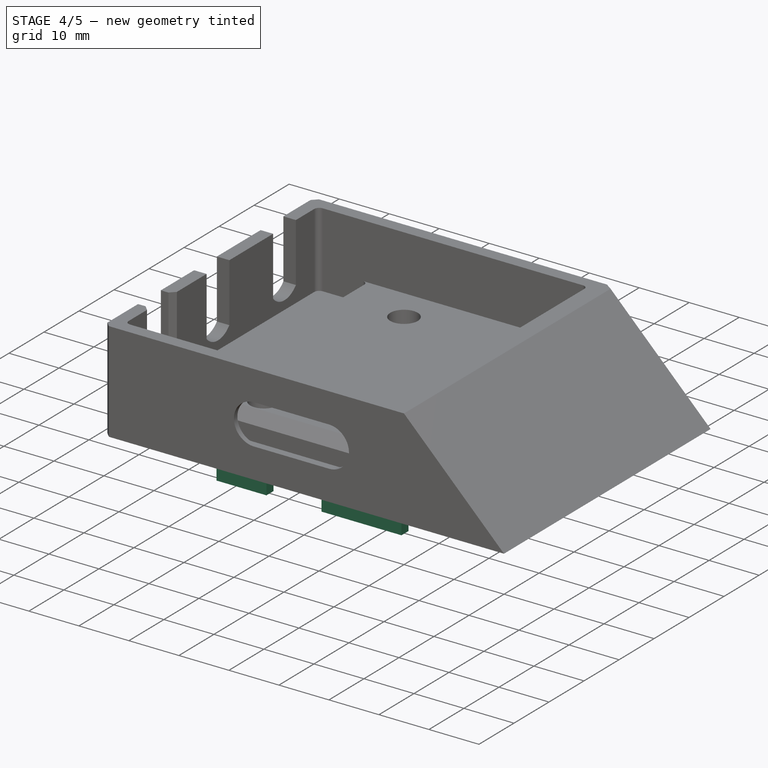
[diagram: stage 4 of 5 — iso view after this stage's code; geometry added in this stage tinted green]
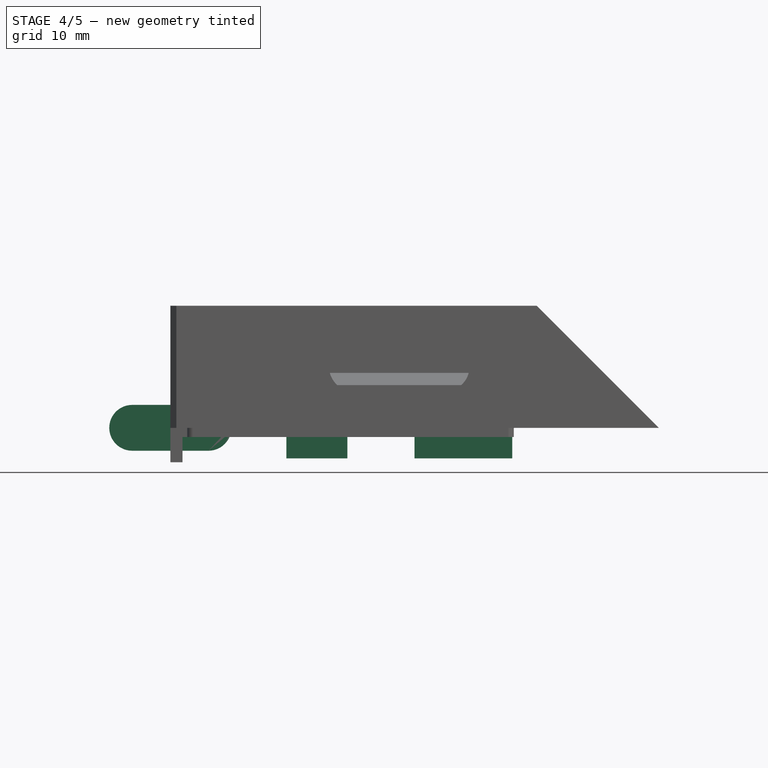
[diagram: stage 4 of 5 — front view after this stage's code; geometry added in this stage tinted green]
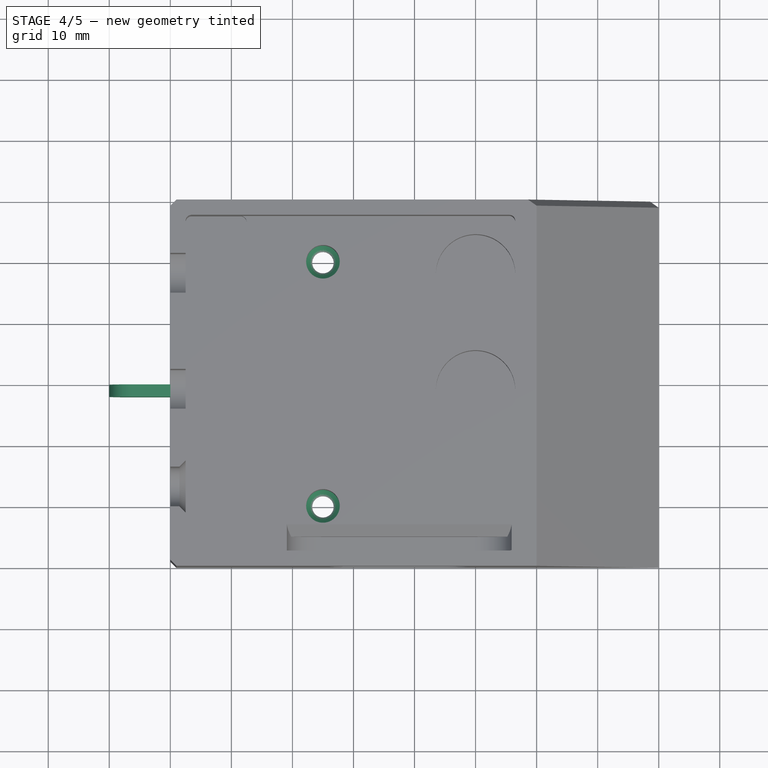
[diagram: stage 4 of 5 — top view after this stage's code; geometry added in this stage tinted green]
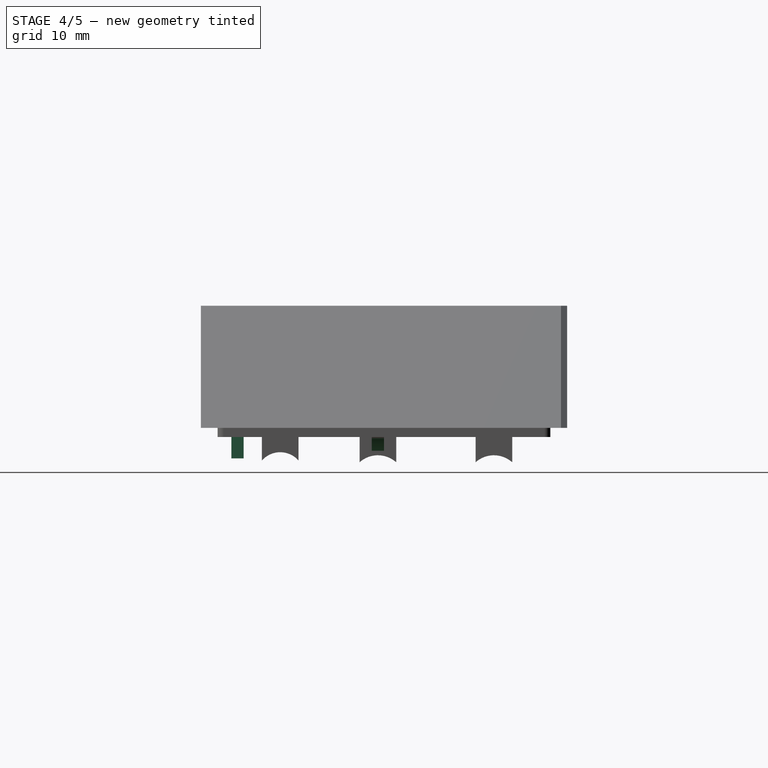
[diagram: stage 4 of 5 — right view after this stage's code; geometry added in this stage tinted green]
FEATURE [PartDesign::Pad] Pad001  label="Knob"
  Direction = (0,-1,-2e-16)
  Length = 2
  Length2 = 10
  Placement = pos=(0,0,0) rot=(1,0,0;1.5708rad)
  Profile = -> Sketch008
  ReferenceAxis = -> Sketch008 [N_Axis]
  Type = 0
FEATURE [Sketcher::SketchObject] Sketch018
  AttachmentOffset = pos=(0,0,-5) rot=(0,0,1;0rad)
  FullyConstrained = true
  MapMode = 5
  Placement = pos=(0,0,-5) rot=(0,0,1;0rad)
  Support = -> [XY_Plane080]
  sketch-geometry (8):
    g0: LineSegment StartX=19 StartY=-25 StartZ=0 EndX=29 EndY=-25 EndZ=0
    g1: LineSegment StartX=29 StartY=-25 StartZ=0 EndX=29 EndY=-23 EndZ=0
    g2: LineSegment StartX=29 StartY=-23 StartZ=0 EndX=19 EndY=-23 EndZ=0
    g3: LineSegment StartX=19 StartY=-23 StartZ=0 EndX=19 EndY=-25 EndZ=0
    g4: LineSegment StartX=40 StartY=-25 StartZ=0 EndX=56 EndY=-25 EndZ=0
    g5: LineSegment StartX=56 StartY=-25 StartZ=0 EndX=56 EndY=-23 EndZ=0
    g6: LineSegment StartX=56 StartY=-23 StartZ=0 EndX=40 EndY=-23 EndZ=0
    g7: LineSegment StartX=40 StartY=-23 StartZ=0 EndX=40 EndY=-25 EndZ=0
  constraints (24):
    c: Coincident(g0,g1)
    c: Coincident(g1,g2)
    c: Coincident(g2,g3)
    c: Coincident(g3,g0)
    c: Horizontal(g0)
    c: Horizontal(g2)
    c: Vertical(g1)
    c: Vertical(g3)
    c: Coincident(g4,g5)
    c: Coincident(g5,g6)
    c: Coincident(g6,g7)
    c: Coincident(g7,g4)
    c: Horizontal(g4)
    c: Horizontal(g6)
    c: Vertical(g5)
    c: Vertical(g7)
    c: Horizontal(g6,g1)
    c: Horizontal(g0,g4)
    c: DistanceY(g2,g-1) = 23
    c: DistanceY(g0,g-1) = 25
    c: DistanceX(g-1,g2) = 19
    c: DistanceX(g-1,g5) = 56
    c: DistanceX(g2,g2) = 10
    c: DistanceX(g6,g6) = 16
FEATURE [PartDesign::Pad] Pad008  label="SliderSupport"
  BaseFeature = -> Pocket009
  Direction = (0,0,1)
  Length = 4
  Length2 = 10
  Placement = pos=(0,0,0) rot=(1,0,0;1.5708rad)
  Profile = -> Sketch018
  ReferenceAxis = -> Sketch018 [N_Axis]
  Type = 0
FEATURE [PartDesign::Chamfer] Chamfer001  label="ScrewHoleChamfer"
  Angle = 45
  Base = -> Pad008 [Edge50,Edge49]
  BaseFeature = -> Pad008
  ChamferType = 0
  FlipDirection = false
  Placement = pos=(0,0,0) rot=(1,0,0;1.5708rad)
  Size = 1.5
  Size2 = 1
  SupportTransform = false
  UseAllEdges = false
FEATURE [PartDesign::Chamfer] Chamfer002  label="EdgeChamfer"
  Angle = 45
  Base = -> Chamfer001 [Edge20,Edge17,Edge16,Edge18]
  BaseFeature = -> Chamfer001
  ChamferType = 0
  FlipDirection = false
  Placement = pos=(0,0,0) rot=(1,0,0;1.5708rad)
  Size = 1
  Size2 = 1
  SupportTransform = false
  UseAllEdges = false
FEATURE [PartDesign::Chamfer] Chamfer003  label="TopChamfer"
  Angle = 45
  Base = -> Chamfer002 [Edge4,Edge2,Edge1,Edge3,Edge5,Edge7,Edge8,Edge6]
  BaseFeature = -> Chamfer002
  ChamferType = 0
  FlipDirection = false
  Placement = pos=(0,0,0) rot=(1,0,0;1.5708rad)
  Size = 0.5
  Size2 = 1
  SupportTransform = false
  UseAllEdges = false
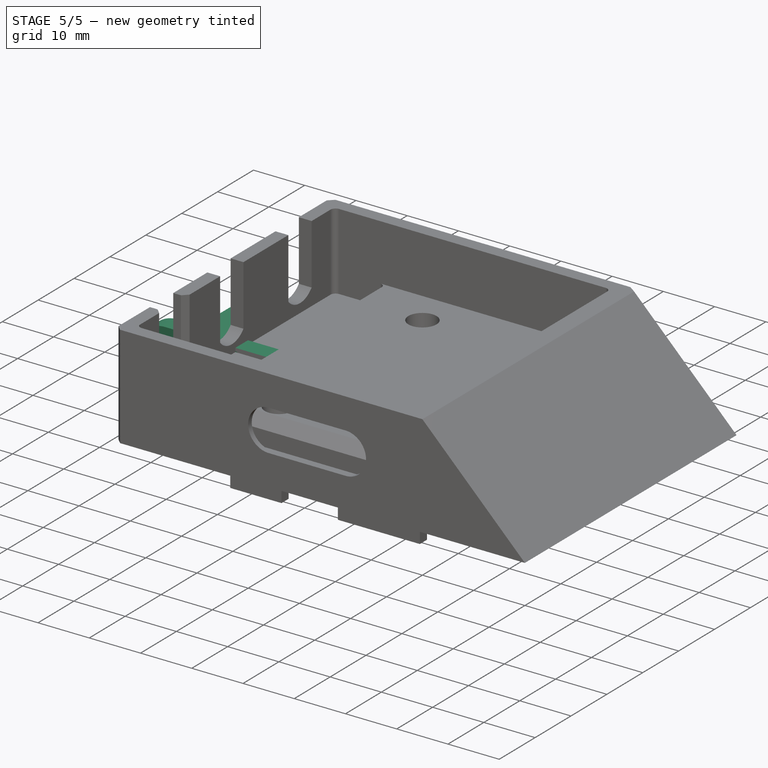
[diagram: stage 5 of 5 — iso view after this stage's code; geometry added in this stage tinted green]
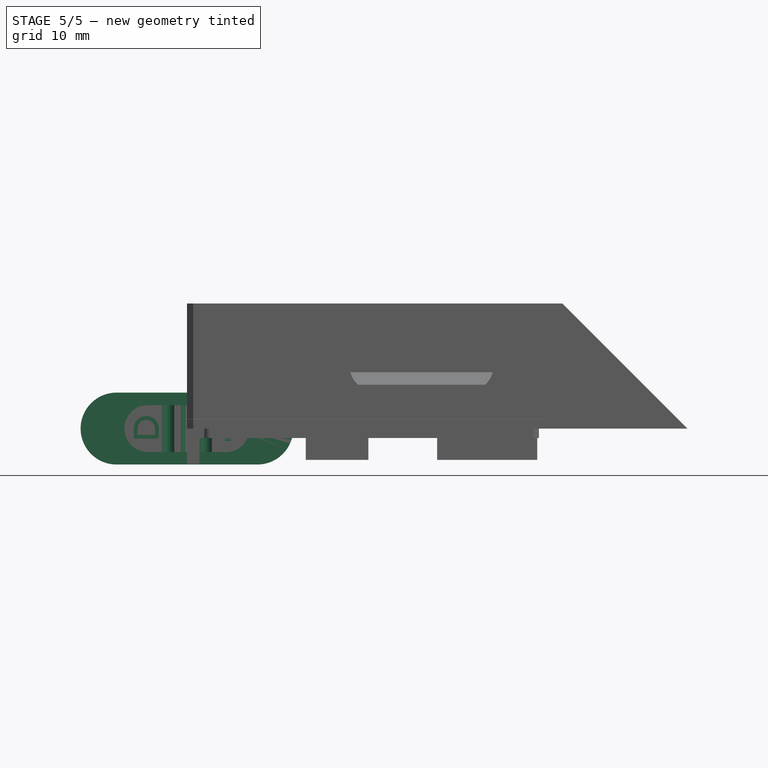
[diagram: stage 5 of 5 — front view after this stage's code; geometry added in this stage tinted green]
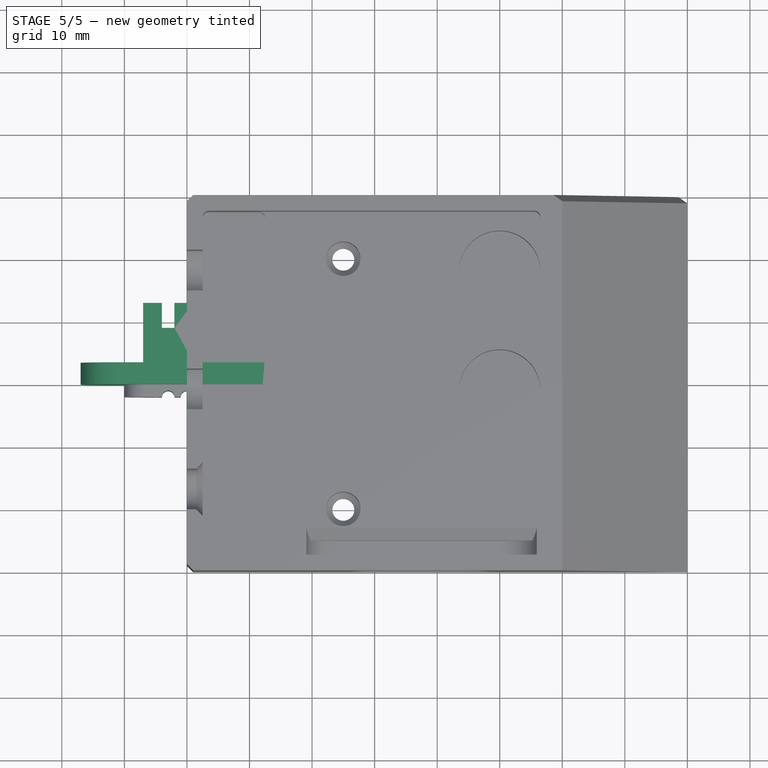
[diagram: stage 5 of 5 — top view after this stage's code; geometry added in this stage tinted green]
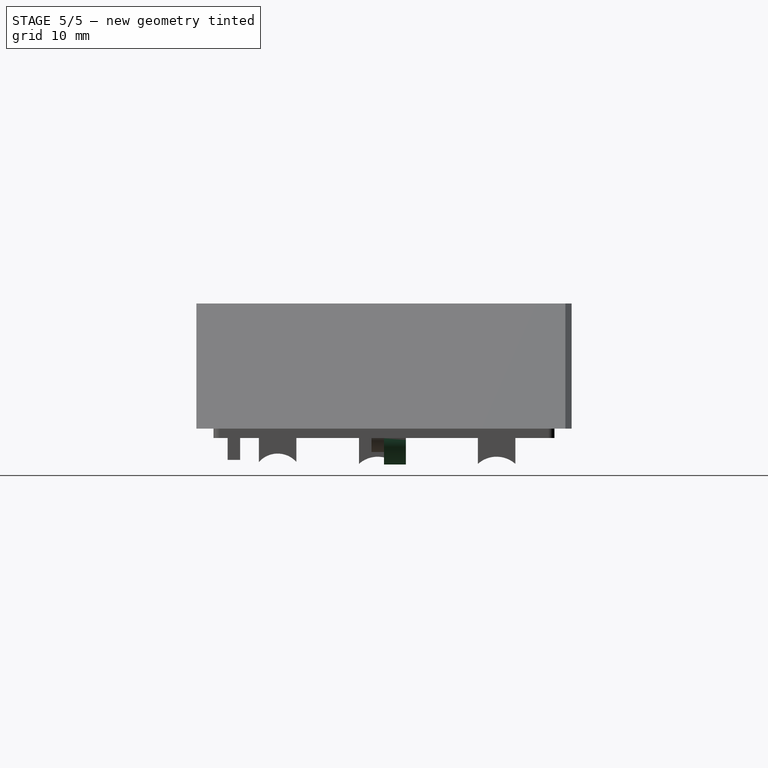
[diagram: stage 5 of 5 — right view after this stage's code; geometry added in this stage tinted green]
FEATURE [Sketcher::SketchObject] Sketch010
  FullyConstrained = true
  MapMode = 5
  Placement = pos=(0,0,0) rot=(1,0,0;1.5708rad)
  Support = -> [XZ_Plane028]
  sketch-geometry (4):
    g0: ArcOfCircle CenterX=-11.25 CenterY=0 CenterZ=0 NormalX=0 NormalY=0 NormalZ=1 AngleXU=0 Radius=5.75 StartAngle=1.5708 EndAngle=4.71239
    g1: ArcOfCircle CenterX=11.25 CenterY=3e-16 CenterZ=0 NormalX=0 NormalY=0 NormalZ=1 AngleXU=0 Radius=5.75 StartAngle=4.71239 EndAngle=7.85398
    g2: LineSegment StartX=-11.25 StartY=-5.75 StartZ=0 EndX=11.25 EndY=-5.75 EndZ=0
    g3: LineSegment StartX=11.25 StartY=5.75 StartZ=0 EndX=-11.25 EndY=5.75 EndZ=0
  constraints (9):
    c: Tangent(g0,g2) = -1.5708
    c: Tangent(g2,g1) = -1.5708
    c: Tangent(g1,g3) = -1.5708
    c: Tangent(g3,g0) = -1.5708
    c: Equal(g0,g1)
    c: PointOnObject(g0,g-1)
    c: DistanceY(g1,g1) = 11.5
    c: DistanceX(g0,g1) = 22.5
    c: Symmetric(g0,g1,g-2)
FEATURE [PartDesign::Pad] Pad002  label="KnobBack"
  BaseFeature = -> Pad001
  Direction = (0,-1,-2e-16)
  Length = 3.5
  Length2 = 10
  Placement = pos=(0,0,0) rot=(1,0,0;1.5708rad)
  Profile = -> Sketch010
  ReferenceAxis = -> Sketch010 [N_Axis]
  Reversed = true
  Type = 0
FEATURE [Sketcher::SketchObject] Sketch011
  AttachmentOffset = pos=(0,0,4.5) rot=(0,0,1;0rad)
  FullyConstrained = true
  MapMode = 5
  Placement = pos=(0,0,4.5) rot=(0,0,1;0rad)
  Support = -> [XY_Plane028]
  sketch-geometry (8):
    g0: LineSegment StartX=-7 StartY=0 StartZ=0 EndX=-7 EndY=13 EndZ=0
    g1: LineSegment StartX=-7 StartY=13 StartZ=0 EndX=-4 EndY=13 EndZ=0
    g2: LineSegment StartX=-4 StartY=13 StartZ=0 EndX=-4 EndY=9 EndZ=0
    g3: LineSegment StartX=-4 StartY=9 StartZ=0 EndX=-2 EndY=9 EndZ=0
    g4: LineSegment StartX=-2 StartY=9 StartZ=0 EndX=-2 EndY=13 EndZ=0
    g5: LineSegment StartX=-2 StartY=13 StartZ=0 EndX=1 EndY=13 EndZ=0
    g6: LineSegment StartX=1 StartY=13 StartZ=0 EndX=1 EndY=0 EndZ=0
    g7: LineSegment StartX=1 StartY=0 StartZ=0 EndX=-7 EndY=0 EndZ=0
  constraints (24):
    c: Vertical(g0)
    c: Coincident(g0,g1)
    c: Horizontal(g1)
    c: Coincident(g1,g2)
    c: Vertical(g2)
    c: Coincident(g2,g3)
    c: Horizontal(g3)
    c: Coincident(g3,g4)
    c: Vertical(g4)
    c: Coincident(g4,g5)
    c: Horizontal(g5)
    c: Coincident(g5,g6)
    c: Vertical(g6)
    c: Coincident(g6,g7)
    c: Coincident(g7,g0)
    c: Horizontal(g7)
    c: DistanceX(g1,g4) = 2
    c: Horizontal(g4,g1)
    c: PointOnObject(g0,g-1)
    c: DistanceX(g1,g1) = 3
    c: DistanceX(g5,g5) = 3
    c: DistanceY(g6,g6) = 13
    c: DistanceY(g-1,g3) = 9
    c: DistanceX(g0,g-1) = 7
FEATURE [PartDesign::Pad] Pad003  label="SwitchFork"
  BaseFeature = -> Pad002
  Direction = (0,0,1)
  Length = 1.25
  Length2 = 10
  Placement = pos=(0,0,0) rot=(1,0,0;1.5708rad)
  Profile = -> Sketch011
  ReferenceAxis = -> Sketch011 [N_Axis]
  Type = 0
FEATURE [PartDesign::SubtractiveCylinder] Cylinder
  Angle = 360
  AttacherType = Attacher::AttachEngine3D
  AttachmentOffset = pos=(-3,-2,-10) rot=(0,0,1;0rad)
  BaseFeature = -> Pad003
  FirstAngle = 0
  Height = 20
  MapMode = 5
  Placement = pos=(-3,-2,-10) rot=(0,0,1;0rad)
  Radius = 1
  SecondAngle = 0
  Support = -> [XY_Plane028]
FEATURE [PartDesign::LinearPattern] LinearPattern  label="Grooves"
  BaseFeature = -> Cylinder
  Direction = -> X_Axis028
  Length = 6
  Occurrences = 3
  Originals = -> [Cylinder]
  Placement = pos=(-3,-2,-10) rot=(0,0,1;0rad)
FEATURE [Sketcher::SketchObject] Sketch012
  AttachmentOffset = pos=(0,0,2) rot=(0,0,1;0rad)
  FullyConstrained = true
  MapMode = 5
  Placement = pos=(0,-2,-4e-16) rot=(1,0,0;1.5708rad)
  Support = -> [XZ_Plane028]
  sketch-geometry (12):
    g0: ArcOfCircle CenterX=-6.5 CenterY=0 CenterZ=0 NormalX=0 NormalY=0 NormalZ=1 AngleXU=0 Radius=2 StartAngle=0 EndAngle=3.14159
    g1: ArcOfCircle CenterX=-6.5 CenterY=0 CenterZ=0 NormalX=0 NormalY=0 NormalZ=1 AngleXU=0 Radius=1.4 StartAngle=2.3337e-12 EndAngle=3.14159
    g2: LineSegment StartX=-8.5 StartY=2e-16 StartZ=0 EndX=-8.5 EndY=-1.6 EndZ=0
    g3: LineSegment StartX=-8.5 StartY=-1.6 StartZ=0 EndX=-4.5 EndY=-1.6 EndZ=0
    g4: LineSegment StartX=-4.5 StartY=-1.6 StartZ=0 EndX=-4.5 EndY=0 EndZ=0
    g5: LineSegment StartX=-5.1 StartY=3.2671e-12 StartZ=0 EndX=-5.1 EndY=-1 EndZ=0
    g6: LineSegment StartX=-5.1 StartY=-1 StartZ=0 EndX=-7.9 EndY=-1 EndZ=0
    g7: LineSegment StartX=-7.9 StartY=-1 StartZ=0 EndX=-7.9 EndY=2e-16 EndZ=0
    g8: ArcOfCircle CenterX=6.5 CenterY=0 CenterZ=0 NormalX=0 NormalY=0 NormalZ=1 AngleXU=0 Radius=1.4 StartAngle=2.34599 EndAngle=7.07879
    g9: ArcOfCircle CenterX=6.5 CenterY=0 CenterZ=0 NormalX=0 NormalY=0 NormalZ=1 AngleXU=0 Radius=2 StartAngle=2.34599 EndAngle=7.07879
    g10: LineSegment StartX=5.5202 StartY=1 StartZ=0 EndX=5.10029 EndY=1.42857 EndZ=0
    g11: LineSegment StartX=7.4798 StartY=1 StartZ=0 EndX=7.89971 EndY=1.42857 EndZ=0
  constraints (37):
    c: PointOnObject(g0,g-1)
    c: PointOnObject(g0,g-1)
    c: PointOnObject(g0,g-1)
    c: Coincident(g1,g0)
    c: PointOnObject(g1,g-1)
    c: Tangent(g0,g2) = -1.5708
    c: Coincident(g2,g3)
    c: Horizontal(g3)
    c: Coincident(g3,g4)
    c: Coincident(g4,g0)
    c: Vertical(g4)
    c: Vertical(g5)
    c: Coincident(g5,g6)
    c: Horizontal(g6)
    c: Coincident(g6,g7)
    c: Coincident(g7,g1)
    c: PointOnObject(g1,g-1)
    c: Vertical(g7)
    c: Coincident(g5,g1)
    c: DistanceY(g2,g6) = 0.6
    c: DistanceX(g2,g6) = 0.6
    c: DistanceY(g5,g5) = 1
    c: DistanceX(g3,g3) = 4
    c: DistanceX(g0,g-1) = 6.5
    c: PointOnObject(g8,g-1)
    c: Coincident(g9,g8)
    c: Coincident(g10,g8)
    c: Coincident(g10,g9)
    c: Coincident(g11,g8)
    c: Coincident(g11,g9)
    c: PointOnObject(g8,g11)
    c: PointOnObject(g8,g10)
    c: Equal(g1,g8)
    c: Equal(g9,g0)
    c: DistanceX(g-1,g8) = 6.5
    c: Horizontal(g8,g8)
    c: DistanceY(g8,g8) = 1
FEATURE [PartDesign::Pocket] Pocket008
  BaseFeature = -> LinearPattern
  Direction = (0,1,2e-16)
  Length = 0.4
  Length2 = 5
  Placement = pos=(-3,-2,-10) rot=(0,0,1;0rad)
  Profile = -> Sketch012
  ReferenceAxis = -> Sketch012 [N_Axis]
  Type = 0
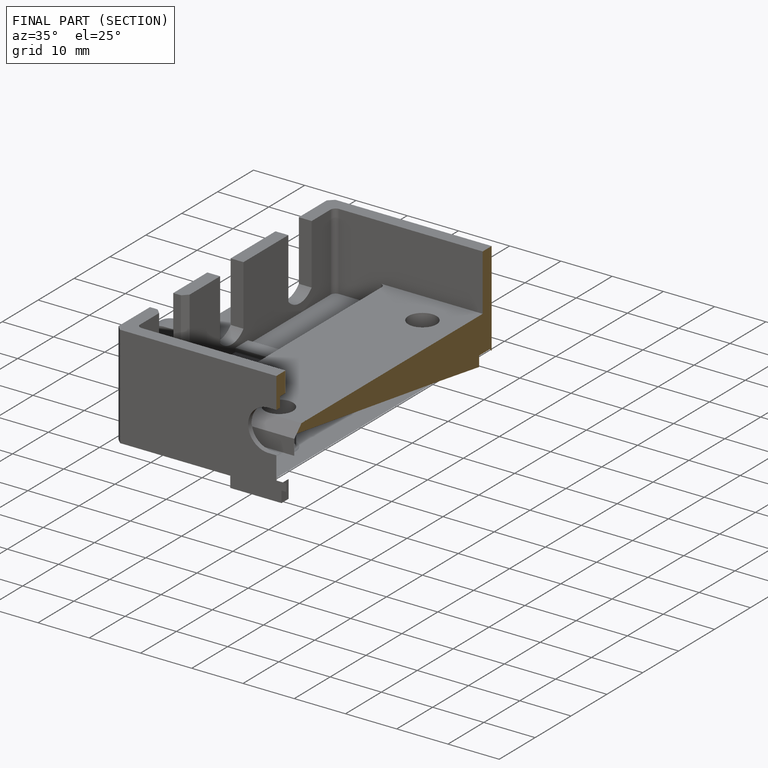
[diagram: finished part — half-section view (interior)]
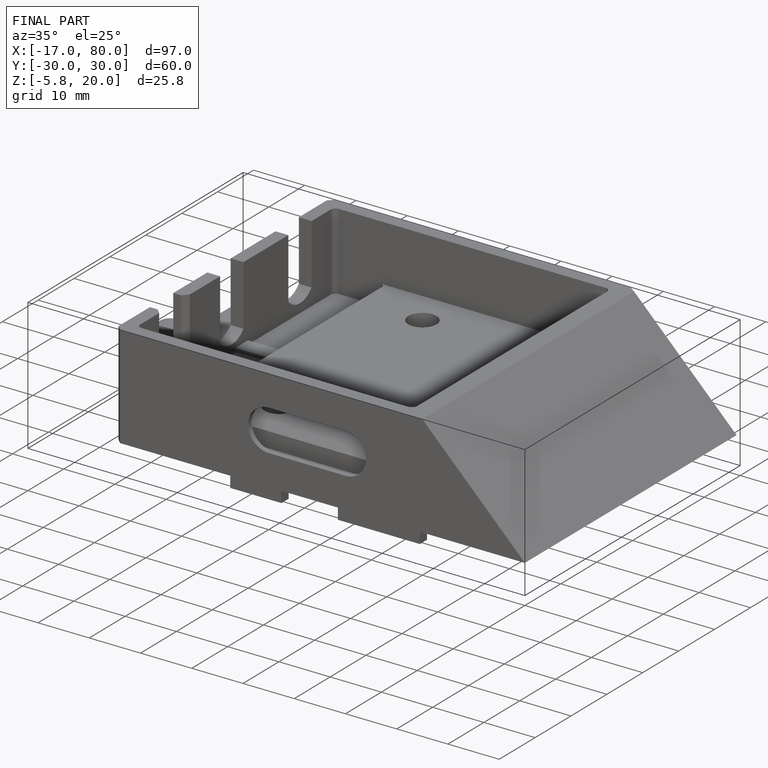
[diagram: finished part — iso view with bounding-box wireframe]
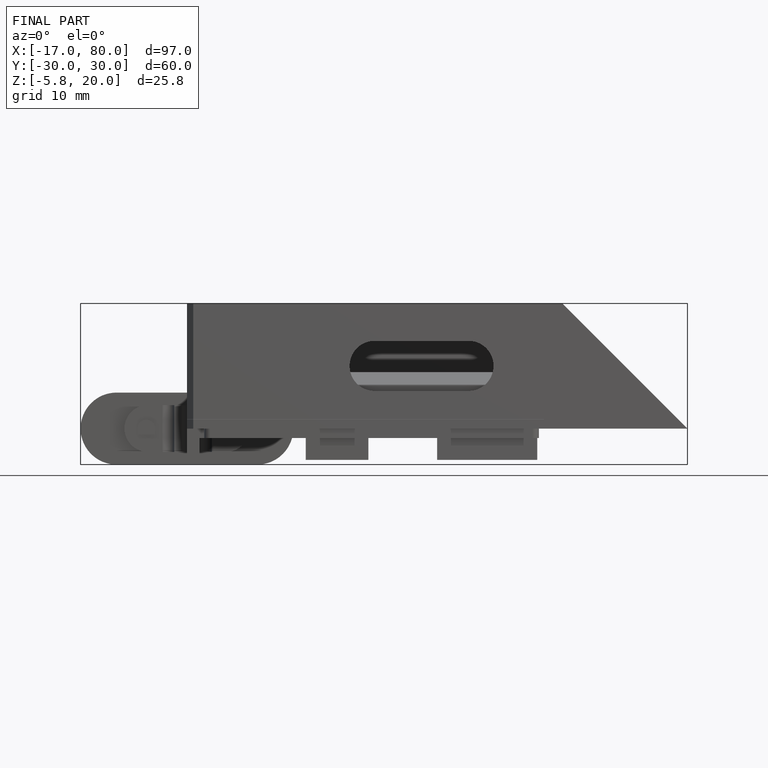
[diagram: finished part — front view with bounding-box wireframe]
